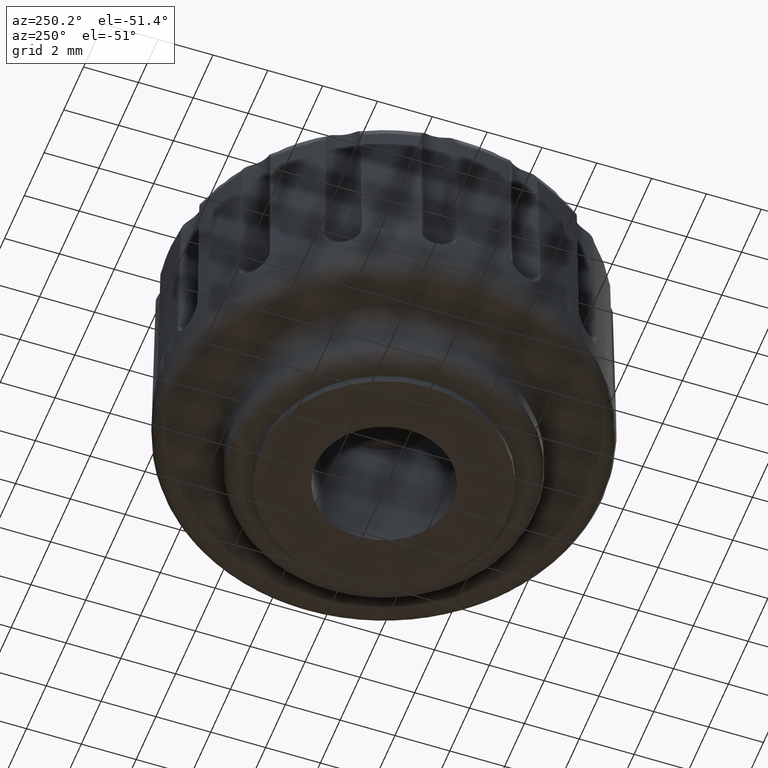
[diagram: clean part render]
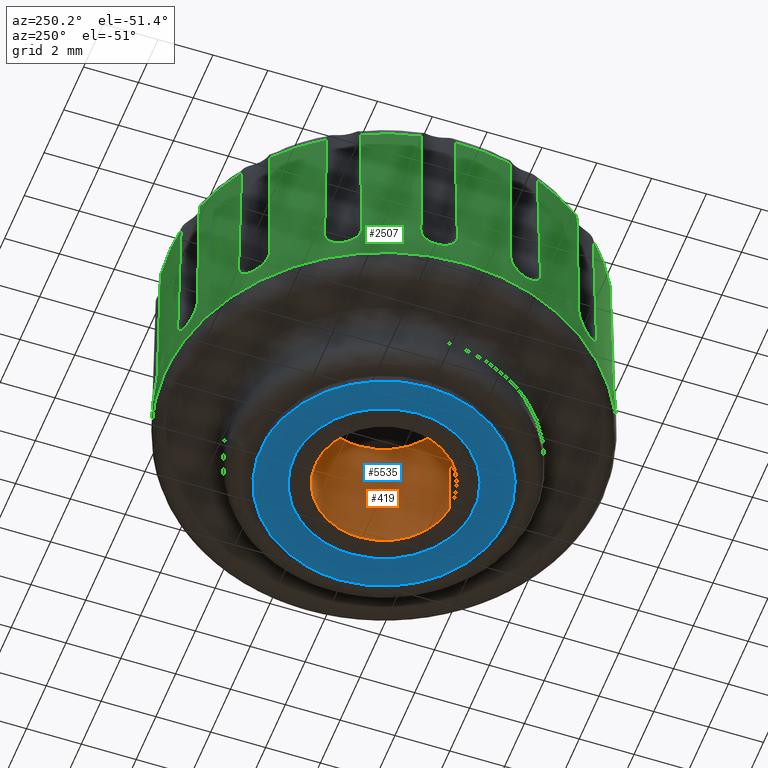
[diagram: same view with three faces highlighted in distinct colors, each labeled with its STEP entity id]
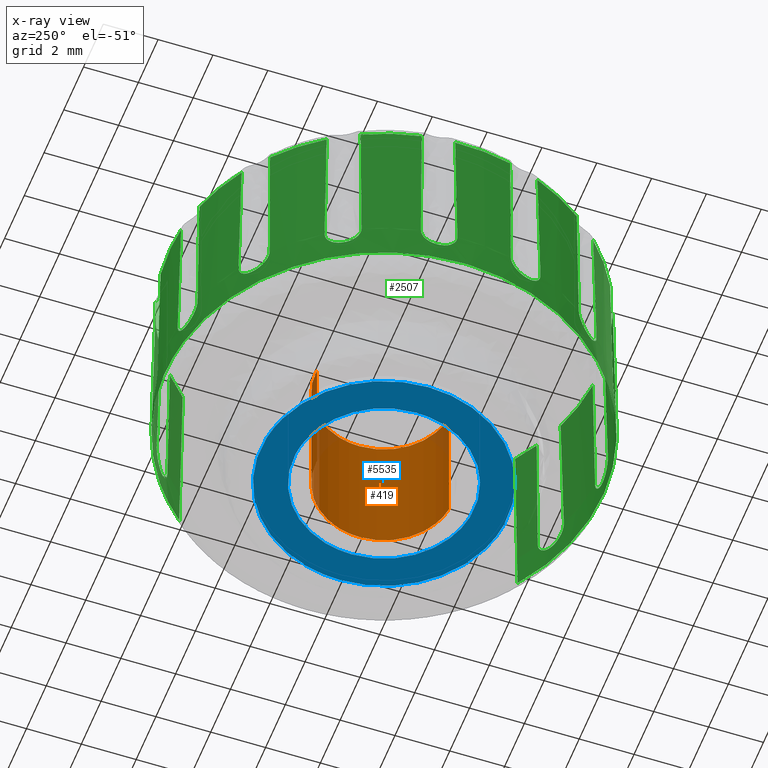
[diagram: x-ray of the same camera — body ghosted, the three highlighted faces saturated]
A machine part, auxiliary view with three faces highlighted in distinct colors.
The next image is the same camera in x-ray (body ghosted, the three faces saturated) — at least one of them is partly hidden behind the body in this view.
Their STEP definitions:

[orange] entity #419 — the highlighted face is a freeform B-spline surface patch.
#256=CARTESIAN_POINT('',(0.295089601772535,-2.482521814110650,-2.768443E-016));
#257=VERTEX_POINT('',#256);
#275=CARTESIAN_POINT('',(-0.152617348850250,2.495338996053875,1.387779E-017));
#276=VERTEX_POINT('',#275);
#290=CARTESIAN_POINT('',(-0.152617348850251,2.495338996053875,5.0));
#291=VERTEX_POINT('',#290);
#292=CARTESIAN_POINT('',(-0.152617348850251,2.495338996053875,5.0));
#293=CARTESIAN_POINT('',(-0.152617348850250,2.495338996053875,1.387779E-017));
#294=QUASI_UNIFORM_CURVE('',1,(#292,#293),.UNSPECIFIED.,.F.,.U.);
#295=EDGE_CURVE('',#291,#276,#294,.T.);
#312=CARTESIAN_POINT('',(0.295089601772535,-2.482521814110650,4.999999999999998));
#313=VERTEX_POINT('',#312);
#329=CARTESIAN_POINT('',(0.295089601772535,-2.482521814110650,4.999999999999998));
#330=CARTESIAN_POINT('',(0.295089601772535,-2.482521814110650,-2.768443E-016));
#331=QUASI_UNIFORM_CURVE('',1,(#329,#330),.UNSPECIFIED.,.F.,.U.);
#332=EDGE_CURVE('',#313,#257,#331,.T.);
#337=CARTESIAN_POINT('',(-0.152617348837146,2.495338996054676,5.125000000000001));
#338=CARTESIAN_POINT('',(2.342719647217522,2.647960344891818,5.125000000000001));
#339=CARTESIAN_POINT('',(2.495340996054664,0.152623348837152,5.125000000000001));
#340=CARTESIAN_POINT('',(2.639469491831317,-2.203856727098743,5.125000000000001));
#341=CARTESIAN_POINT('',(0.295089586641893,-2.482521815909157,5.125000000000002));
#342=CARTESIAN_POINT('',(-0.152617348837146,2.495338996054676,-0.128125000000001));
#343=CARTESIAN_POINT('',(2.342719647217522,2.647960344891818,-0.128125000000001));
#344=CARTESIAN_POINT('',(2.495340996054664,0.152623348837152,-0.128125000000001));
#345=CARTESIAN_POINT('',(2.639469491831317,-2.203856727098743,-0.128125000000001));
#346=CARTESIAN_POINT('',(0.295089586641893,-2.482521815909157,-0.128125000000001));
#354=(BOUNDED_SURFACE()B_SPLINE_SURFACE(2,1,((#337,#342),(#338,#343),(#339,#344),(#340,#345),(#341,#346)),.UNSPECIFIED.,.F.,.F.,.U.)B_SPLINE_SURFACE_WITH_KNOTS((3,2,3),(2,2),(0.0,4.142135623730949,8.118585822512660),(0.0,5.253125000000002),.UNSPECIFIED.)GEOMETRIC_REPRESENTATION_ITEM()RATIONAL_B_SPLINE_SURFACE(((1.0,1.0),(0.707106781186548,0.707106781186548),(1.0,1.0),(0.718822509939086,0.718822509939086),(0.977505800795127,0.977505800795127)))REPRESENTATION_ITEM('')SURFACE());
#355=CARTESIAN_POINT('',(2.500003999999997,0.000002000000009,0.0));
#356=VERTEX_POINT('',#355);
#357=CARTESIAN_POINT('',(2.500003999999997,0.000002000000009,0.0));
#358=CARTESIAN_POINT('',(2.500003999999997,-2.220434287621361,0.0));
#359=CARTESIAN_POINT('',(0.295089601772535,-2.482521814110651,-2.768443E-016));
#367=(BOUNDED_CURVE()B_SPLINE_CURVE(2,(#357,#358,#359),.UNSPECIFIED.,.F.,.U.)B_SPLINE_CURVE_WITH_KNOTS((3,3),(0.0,0.229562471455541),.UNSPECIFIED.)CURVE()GEOMETRIC_REPRESENTATION_ITEM()RATIONAL_B_SPLINE_CURVE((1.0,0.731050835266461,0.956026750149999))REPRESENTATION_ITEM(''));
#368=EDGE_CURVE('',#356,#257,#367,.T.);
#369=ORIENTED_EDGE('',*,*,#368,.T.);
#370=ORIENTED_EDGE('',*,*,#332,.F.);
#371=CARTESIAN_POINT('',(2.500003999999997,0.000002000000009,5.0));
#372=VERTEX_POINT('',#371);
#373=CARTESIAN_POINT('',(2.500003999999997,0.000002000000009,5.0));
#374=CARTESIAN_POINT('',(2.500003999999997,-2.220434287621361,4.999999999999998));
#375=CARTESIAN_POINT('',(0.295089601772535,-2.482521814110651,4.999999999999998));
#383=(BOUNDED_CURVE()B_SPLINE_CURVE(2,(#373,#374,#375),.UNSPECIFIED.,.F.,.U.)B_SPLINE_CURVE_WITH_KNOTS((3,3),(0.0,0.229562471455541),.UNSPECIFIED.)CURVE()GEOMETRIC_REPRESENTATION_ITEM()RATIONAL_B_SPLINE_CURVE((1.0,0.731050835266461,0.956026750149999))REPRESENTATION_ITEM(''));
#384=EDGE_CURVE('',#372,#313,#383,.T.);
#385=ORIENTED_EDGE('',*,*,#384,.F.);
#386=CARTESIAN_POINT('',(-0.152617348850251,2.495338996053876,5.0));
#387=CARTESIAN_POINT('',(-0.076377908259617,2.500002000000010,5.0));
#388=CARTESIAN_POINT('',(0.000003999999997,2.500002000000010,5.0));
#389=CARTESIAN_POINT('',(2.500003999999998,2.500002000000010,5.000000000000001));
#390=CARTESIAN_POINT('',(2.500003999999997,0.000002000000009,5.0));
#398=(BOUNDED_CURVE()B_SPLINE_CURVE(2,(#386,#387,#388,#389,#390),.UNSPECIFIED.,.F.,.U.)B_SPLINE_CURVE_WITH_KNOTS((3,2,3),(0.739332962240156,0.750000000000000,1.0),.UNSPECIFIED.)CURVE()GEOMETRIC_REPRESENTATION_ITEM()RATIONAL_B_SPLINE_CURVE((0.976072041669317,0.987502787901258,1.0,0.707106781186548,1.0))REPRESENTATION_ITEM(''));
#399=EDGE_CURVE('',#291,#372,#398,.T.);
#400=ORIENTED_EDGE('',*,*,#399,.F.);
#401=ORIENTED_EDGE('',*,*,#295,.T.);
#402=CARTESIAN_POINT('',(-0.152617348850250,2.495338996053875,1.387779E-017));
#403=CARTESIAN_POINT('',(-0.076377908259617,2.500002000000010,0.0));
#404=CARTESIAN_POINT('',(0.000003999999997,2.500002000000010,0.0));
#405=CARTESIAN_POINT('',(2.500003999999998,2.500002000000010,0.0));
#406=CARTESIAN_POINT('',(2.500003999999997,0.000002000000009,0.0));
#414=(BOUNDED_CURVE()B_SPLINE_CURVE(2,(#402,#403,#404,#405,#406),.UNSPECIFIED.,.F.,.U.)B_SPLINE_CURVE_WITH_KNOTS((3,2,3),(0.739332962240156,0.750000000000000,1.0),.UNSPECIFIED.)CURVE()GEOMETRIC_REPRESENTATION_ITEM()RATIONAL_B_SPLINE_CURVE((0.976072041669318,0.987502787901259,1.0,0.707106781186548,1.0))REPRESENTATION_ITEM(''));
#415=EDGE_CURVE('',#276,#356,#414,.T.);
#416=ORIENTED_EDGE('',*,*,#415,.T.);
#417=EDGE_LOOP('',(#369,#370,#385,#400,#401,#416));
#418=FACE_OUTER_BOUND('',#417,.T.);
#419=ADVANCED_FACE('',(#418),#354,.F.);

[blue] entity #5535 — the highlighted face is a freeform B-spline surface patch.
#538=CARTESIAN_POINT('',(0.389509322563938,-3.276932108792716,1.419714E-017));
#539=VERTEX_POINT('',#538);
#545=CARTESIAN_POINT('',(-3.299998000000001,0.0,0.0));
#546=VERTEX_POINT('',#545);
#547=CARTESIAN_POINT('',(0.389509322563938,-3.276932108792716,1.419714E-017));
#548=CARTESIAN_POINT('',(0.195438739075279,-3.299999999999999,0.0));
#549=CARTESIAN_POINT('',(0.000001999999999,-3.300000000000000,0.0));
#550=CARTESIAN_POINT('',(-3.299998000000002,-3.300000000000000,0.0));
#551=CARTESIAN_POINT('',(-3.299998000000001,0.0,0.0));
#559=(BOUNDED_CURVE()B_SPLINE_CURVE(2,(#547,#548,#549,#550,#551),.UNSPECIFIED.,.F.,.U.)B_SPLINE_CURVE_WITH_KNOTS((3,2,3),(0.229562764999688,0.250000000000000,0.500000000000000),.UNSPECIFIED.)CURVE()GEOMETRIC_REPRESENTATION_ITEM()RATIONAL_B_SPLINE_CURVE((0.956027325509337,0.976056289828447,1.0,0.707106781186548,1.0))REPRESENTATION_ITEM(''));
#560=EDGE_CURVE('',#539,#546,#559,.T.);
#562=CARTESIAN_POINT('',(-0.201458180479343,3.293844834791285,1.387779E-017));
#563=VERTEX_POINT('',#562);
#564=CARTESIAN_POINT('',(-3.299998000000001,0.0,0.0));
#565=CARTESIAN_POINT('',(-3.299998000000002,3.104330020761756,0.0));
#566=CARTESIAN_POINT('',(-0.201458180479343,3.293844834791285,1.387779E-017));
#574=(BOUNDED_CURVE()B_SPLINE_CURVE(2,(#564,#565,#566),.UNSPECIFIED.,.F.,.U.)B_SPLINE_CURVE_WITH_KNOTS((3,3),(0.500000000000000,0.739332962240468),.UNSPECIFIED.)CURVE()GEOMETRIC_REPRESENTATION_ITEM()RATIONAL_B_SPLINE_CURVE((1.0,0.719603993284923,0.976072041669987))REPRESENTATION_ITEM(''));
#575=EDGE_CURVE('',#546,#563,#574,.T.);
#653=CARTESIAN_POINT('',(3.300001999999998,0.0,0.0));
#654=VERTEX_POINT('',#653);
#655=CARTESIAN_POINT('',(-0.201458180479342,3.293844834791285,1.387779E-017));
#656=CARTESIAN_POINT('',(-0.100822118899698,3.300000000000000,0.0));
#657=CARTESIAN_POINT('',(0.000001999999999,3.300000000000000,0.0));
#658=CARTESIAN_POINT('',(3.300001999999998,3.300000000000000,0.0));
#659=CARTESIAN_POINT('',(3.300001999999998,0.0,0.0));
#667=(BOUNDED_CURVE()B_SPLINE_CURVE(2,(#655,#656,#657,#658,#659),.UNSPECIFIED.,.F.,.U.)B_SPLINE_CURVE_WITH_KNOTS((3,2,3),(0.739332962240469,0.750000000000000,1.0),.UNSPECIFIED.)CURVE()GEOMETRIC_REPRESENTATION_ITEM()RATIONAL_B_SPLINE_CURVE((0.976072041669988,0.987502787901625,1.0,0.707106781186548,1.0))REPRESENTATION_ITEM(''));
#668=EDGE_CURVE('',#563,#654,#667,.T.);
#670=CARTESIAN_POINT('',(3.300001999999998,0.0,0.0));
#671=CARTESIAN_POINT('',(3.300001999999998,-2.930981026354351,0.0));
#672=CARTESIAN_POINT('',(0.389509322563938,-3.276932108792716,1.419714E-017));
#680=(BOUNDED_CURVE()B_SPLINE_CURVE(2,(#670,#671,#672),.UNSPECIFIED.,.F.,.U.)B_SPLINE_CURVE_WITH_KNOTS((3,3),(0.0,0.229562764999688),.UNSPECIFIED.)CURVE()GEOMETRIC_REPRESENTATION_ITEM()RATIONAL_B_SPLINE_CURVE((1.0,0.731050491358101,0.956027325509337))REPRESENTATION_ITEM(''));
#681=EDGE_CURVE('',#654,#539,#680,.T.);
#891=CARTESIAN_POINT('',(-0.531149239530916,4.468545867375239,-0.000001784795915));
#892=VERTEX_POINT('',#891);
#893=CARTESIAN_POINT('',(4.500002409279020,0.0,-0.000001784795445));
#894=VERTEX_POINT('',#893);
#895=CARTESIAN_POINT('',(-0.531149239530916,4.468545867375239,-0.000001784795915));
#896=CARTESIAN_POINT('',(-0.266506103757996,4.500002409279020,-0.000001784795445));
#897=CARTESIAN_POINT('',(0.0,4.500002409279020,-0.000001784795445));
#898=CARTESIAN_POINT('',(4.500002409279020,4.500002409279020,-0.000001784795445));
#899=CARTESIAN_POINT('',(4.500002409279020,0.0,-0.000001784795445));
#907=(BOUNDED_CURVE()B_SPLINE_CURVE(2,(#895,#896,#897,#898,#899),.UNSPECIFIED.,.F.,.U.)B_SPLINE_CURVE_WITH_KNOTS((3,2,3),(0.229562666431259,0.250000000000000,0.500000000000000),.UNSPECIFIED.)CURVE()GEOMETRIC_REPRESENTATION_ITEM()RATIONAL_B_SPLINE_CURVE((0.956027132310733,0.976056174348348,1.0,0.707106781186548,1.0))REPRESENTATION_ITEM(''));
#908=EDGE_CURVE('',#892,#894,#907,.T.);
#949=CARTESIAN_POINT('',(0.274712648487112,-4.491609360156215,-0.000001784795899));
#950=VERTEX_POINT('',#949);
#956=CARTESIAN_POINT('',(4.500002409279020,0.0,-0.000001784795445));
#957=CARTESIAN_POINT('',(4.500002409279019,-4.233185163454786,-0.000001784795445));
#958=CARTESIAN_POINT('',(0.274712648487112,-4.491609360156216,-0.000001784795899));
#966=(BOUNDED_CURVE()B_SPLINE_CURVE(2,(#956,#957,#958),.UNSPECIFIED.,.F.,.U.)B_SPLINE_CURVE_WITH_KNOTS((3,3),(0.500000000000000,0.739333189910759),.UNSPECIFIED.)CURVE()GEOMETRIC_REPRESENTATION_ITEM()RATIONAL_B_SPLINE_CURVE((1.0,0.719603726552585,0.976072529611245))REPRESENTATION_ITEM(''));
#967=EDGE_CURVE('',#894,#950,#966,.T.);
#990=CARTESIAN_POINT('',(-4.500002409279020,0.0,-0.000001784795445));
#991=VERTEX_POINT('',#990);
#992=CARTESIAN_POINT('',(-4.500002409279020,0.0,-0.000001784795445));
#993=CARTESIAN_POINT('',(-4.500002409279019,3.996792101055142,-0.000001784795445));
#994=CARTESIAN_POINT('',(-0.531149239530916,4.468545867375239,-0.000001784795915));
#1002=(BOUNDED_CURVE()B_SPLINE_CURVE(2,(#992,#993,#994),.UNSPECIFIED.,.F.,.U.)B_SPLINE_CURVE_WITH_KNOTS((3,3),(0.0,0.229562666431259),.UNSPECIFIED.)CURVE()GEOMETRIC_REPRESENTATION_ITEM()RATIONAL_B_SPLINE_CURVE((1.0,0.731050606838199,0.956027132310733))REPRESENTATION_ITEM(''));
#1003=EDGE_CURVE('',#991,#892,#1002,.T.);
#1005=CARTESIAN_POINT('',(0.274712648487112,-4.491609360156216,-0.000001784795899));
#1006=CARTESIAN_POINT('',(0.137484536894058,-4.500002409279020,-0.000001784795445));
#1007=CARTESIAN_POINT('',(0.0,-4.500002409279020,-0.000001784795445));
#1008=CARTESIAN_POINT('',(-4.500002409279020,-4.500002409279020,-0.000001784795445));
#1009=CARTESIAN_POINT('',(-4.500002409279020,0.0,-0.000001784795445));
#1017=(BOUNDED_CURVE()B_SPLINE_CURVE(2,(#1005,#1006,#1007,#1008,#1009),.UNSPECIFIED.,.F.,.U.)B_SPLINE_CURVE_WITH_KNOTS((3,2,3),(0.739333189910759,0.750000000000000,1.0),.UNSPECIFIED.)CURVE()GEOMETRIC_REPRESENTATION_ITEM()RATIONAL_B_SPLINE_CURVE((0.976072529611245,0.987503054633962,1.0,0.707106781186548,1.0))REPRESENTATION_ITEM(''));
#1018=EDGE_CURVE('',#950,#991,#1017,.T.);
#5518=CARTESIAN_POINT('',(-4.949552632522238,-4.949443359920227,-0.000001784795445));
#5519=CARTESIAN_POINT('',(4.949552873921179,-4.949443359920227,-0.000001784795445));
#5520=CARTESIAN_POINT('',(-4.949552632522238,4.949470798933141,-0.000001784795445));
#5521=CARTESIAN_POINT('',(4.949552873921179,4.949470798933141,-0.000001784795445));
#5522=B_SPLINE_SURFACE_WITH_KNOTS('',1,1,((#5518,#5520),(#5519,#5521)),.UNSPECIFIED.,.F.,.F.,.U.,(2,2),(2,2),(0.0,9.899105506443416),(0.0,9.898914158853369),.UNSPECIFIED.);
#5523=ORIENTED_EDGE('',*,*,#1003,.T.);
#5524=ORIENTED_EDGE('',*,*,#908,.T.);
#5525=ORIENTED_EDGE('',*,*,#967,.T.);
#5526=ORIENTED_EDGE('',*,*,#1018,.T.);
#5527=EDGE_LOOP('',(#5523,#5524,#5525,#5526));
#5528=FACE_OUTER_BOUND('',#5527,.T.);
#5529=ORIENTED_EDGE('',*,*,#575,.F.);
#5530=ORIENTED_EDGE('',*,*,#560,.F.);
#5531=ORIENTED_EDGE('',*,*,#681,.F.);
#5532=ORIENTED_EDGE('',*,*,#668,.F.);
#5533=EDGE_LOOP('',(#5529,#5530,#5531,#5532));
#5534=FACE_BOUND('',#5533,.T.);
#5535=ADVANCED_FACE('',(#5528,#5534),#5522,.F.);

[green] entity #2507 — the highlighted face is a freeform B-spline surface patch.
#1483=CARTESIAN_POINT('',(4.523723624608315,-6.410093571802729,9.579664984328499));
#1484=CARTESIAN_POINT('',(-1.184411502606155,-10.438431916351211,9.579664984328497));
#1485=CARTESIAN_POINT('',(-5.844892288569011,-5.233603841153109,9.579664984328497));
#1486=CARTESIAN_POINT('',(-11.078496129722119,0.611288447415902,9.579664984328497));
#1487=CARTESIAN_POINT('',(-5.233603841153109,5.844892288569011,9.579664984328497));
#1488=CARTESIAN_POINT('',(0.611288447415902,11.078496129722119,9.579664984328497));
#1489=CARTESIAN_POINT('',(5.844892288569011,5.233603841153109,9.579664984328497));
#1490=CARTESIAN_POINT('',(4.606379219387531,-6.527216132934801,2.542621517320861));
#1491=CARTESIAN_POINT('',(-1.206052576494645,-10.629158598661093,2.542621517320861));
#1492=CARTESIAN_POINT('',(-5.951687727155062,-5.329230071715935,2.542621517320861));
#1493=CARTESIAN_POINT('',(-11.280917798870998,0.622457655439127,2.542621517320862));
#1494=CARTESIAN_POINT('',(-5.329230071715935,5.951687727155062,2.542621517320861));
#1495=CARTESIAN_POINT('',(0.622457655439127,11.280917798870998,2.542621517320862));
#1496=CARTESIAN_POINT('',(5.951687727155062,5.329230071715935,2.542621517320861));
#1504=(BOUNDED_SURFACE()B_SPLINE_SURFACE(2,1,((#1483,#1490),(#1484,#1491),(#1485,#1492),(#1486,#1493),(#1487,#1494),(#1488,#1495),(#1489,#1496)),.UNSPECIFIED.,.F.,.F.,.U.)B_SPLINE_SURFACE_WITH_KNOTS((3,2,2,3),(2,2),(0.0,12.177599675421080,25.414121061748350,38.650642448075622),(0.0,7.038503420346494),.UNSPECIFIED.)GEOMETRIC_REPRESENTATION_ITEM()RATIONAL_B_SPLINE_SURFACE(((0.956886118190660,0.956886118190660),(0.730538238691624,0.730538238691624),(1.0,1.0),(0.707106781186548,0.707106781186548),(1.0,1.0),(0.707106781186548,0.707106781186548),(1.0,1.0)))REPRESENTATION_ITEM('')SURFACE());
#1505=CARTESIAN_POINT('',(4.604361595388040,-6.524360626274461,2.714257200678919));
#1506=VERTEX_POINT('',#1505);
#1507=CARTESIAN_POINT('',(-7.979777103845056,-0.300973106497311,2.714256723902901));
#1508=VERTEX_POINT('',#1507);
#1509=CARTESIAN_POINT('',(4.604361595388041,-6.524360626274461,2.714257200678919));
#1510=CARTESIAN_POINT('',(2.534002842148658,-7.985450985185421,2.714256727239941));
#1511=CARTESIAN_POINT('',(0.0,-7.985450985185420,2.714256727239940));
#1512=CARTESIAN_POINT('',(-7.689941792576957,-7.985450985185419,2.714256727239941));
#1513=CARTESIAN_POINT('',(-7.979777103845056,-0.300973106497311,2.714256723902901));
#1521=(BOUNDED_CURVE()B_SPLINE_CURVE(2,(#1509,#1510,#1511,#1512,#1513),.UNSPECIFIED.,.F.,.U.)B_SPLINE_CURVE_WITH_KNOTS((3,2,3),(0.650841347869913,0.750000000000000,0.993386528575626),.UNSPECIFIED.)CURVE()GEOMETRIC_REPRESENTATION_ITEM()RATIONAL_B_SPLINE_CURVE((0.859812169641832,0.883828412817661,1.0,0.714854944918611,0.984913610611341))REPRESENTATION_ITEM(''));
#1522=EDGE_CURVE('',#1506,#1508,#1521,.T.);
#1523=ORIENTED_EDGE('',*,*,#1522,.F.);
#1524=CARTESIAN_POINT('',(4.525690308210250,-6.412880629569061,9.412216472564930));
#1525=VERTEX_POINT('',#1524);
#1526=CARTESIAN_POINT('',(4.525690308210250,-6.412880629569061,9.412216472564930));
#1527=CARTESIAN_POINT('',(4.604361595388040,-6.524360626274461,2.714257200678919));
#1528=QUASI_UNIFORM_CURVE('',1,(#1526,#1527),.UNSPECIFIED.,.F.,.U.);
#1529=EDGE_CURVE('',#1525,#1506,#1528,.T.);
#1530=ORIENTED_EDGE('',*,*,#1529,.F.);
#1531=CARTESIAN_POINT('',(3.724309383389160,-6.909155556422830,9.412215999999900));
#1532=VERTEX_POINT('',#1531);
#1533=CARTESIAN_POINT('',(4.525690308210250,-6.412880629569061,9.412216472564930));
#1534=CARTESIAN_POINT('',(4.139926372217987,-6.685121484711675,9.412215999999900));
#1535=CARTESIAN_POINT('',(3.724309383389160,-6.909155556422829,9.412215999999900));
#1543=(BOUNDED_CURVE()B_SPLINE_CURVE(2,(#1533,#1534,#1535),.UNSPECIFIED.,.F.,.U.)B_SPLINE_CURVE_WITH_KNOTS((3,3),(0.551312311213483,1.0),.UNSPECIFIED.)CURVE()GEOMETRIC_REPRESENTATION_ITEM()RATIONAL_B_SPLINE_CURVE((0.995569608928650,0.995981958881348,1.0))REPRESENTATION_ITEM(''));
#1544=EDGE_CURVE('',#1525,#1532,#1543,.T.);
#1545=ORIENTED_EDGE('',*,*,#1544,.T.);
#1546=CARTESIAN_POINT('',(3.816159291570730,-6.982428766642530,4.099998000000050));
#1547=VERTEX_POINT('',#1546);
#1548=CARTESIAN_POINT('',(3.816159291570732,-6.982428766642525,4.099998000000049));
#1549=CARTESIAN_POINT('',(3.788607547319943,-6.956378606480446,5.870766696366895));
#1550=CARTESIAN_POINT('',(3.758241348740677,-6.931842592388329,7.641511528857084));
#1551=CARTESIAN_POINT('',(3.724309383389181,-6.909155556422826,9.412215999999901));
#1552=QUASI_UNIFORM_CURVE('',3,(#1548,#1549,#1550,#1551),.UNSPECIFIED.,.F.,.U.);
#1553=EDGE_CURVE('',#1547,#1532,#1552,.T.);
#1554=ORIENTED_EDGE('',*,*,#1553,.F.);
#1555=CARTESIAN_POINT('',(2.635446826464195,-7.508115825209311,4.099997999999999));
#1556=VERTEX_POINT('',#1555);
#1557=CARTESIAN_POINT('',(2.635446826464195,-7.508115825209311,4.099997999999999));
#1558=CARTESIAN_POINT('',(2.635469204785372,-7.509034536623016,4.057080522890732));
#1559=CARTESIAN_POINT('',(2.639371661005295,-7.508585397441424,4.014590445424951));
#1560=CARTESIAN_POINT('',(2.654873826394615,-7.504936122108290,3.930458736214820));
#1561=CARTESIAN_POINT('',(2.666644107312114,-7.501679841034682,3.888587035964628));
#1562=CARTESIAN_POINT('',(2.697055982479386,-7.492517876056766,3.809228933658157));
#1563=CARTESIAN_POINT('',(2.715729833691535,-7.486611176489306,3.771302731087238));
#1564=CARTESIAN_POINT('',(2.749045614769200,-7.475590768231116,3.717113543658333));
#1565=CARTESIAN_POINT('',(2.761070095152176,-7.471543560320807,3.699487256844191));
#1566=CARTESIAN_POINT('',(2.786374755852466,-7.462873231734648,3.665932262034255));
#1567=CARTESIAN_POINT('',(2.799713510803559,-7.458231094141102,3.649899435294610));
#1568=CARTESIAN_POINT('',(2.841748066763659,-7.443361747456543,3.604003944824569));
#1569=CARTESIAN_POINT('',(2.872600347071527,-7.432142351161830,3.576206609757150));
#1570=CARTESIAN_POINT('',(2.939230350303137,-7.407116713903410,3.527290884882226));
#1571=CARTESIAN_POINT('',(2.974172250115709,-7.393625789797515,3.506736951675709));
#1572=CARTESIAN_POINT('',(3.028915085039258,-7.371843638561299,3.481607805134035));
#1573=CARTESIAN_POINT('',(3.047554066064484,-7.364323871120135,3.474188698001266));
#1574=CARTESIAN_POINT('',(3.085633503096338,-7.348734213679758,3.461325843405057));
#1575=CARTESIAN_POINT('',(3.105028406992931,-7.340681347689722,3.455912879122804));
#1576=CARTESIAN_POINT('',(3.163084432209980,-7.316229438180460,3.443011547246517));
#1577=CARTESIAN_POINT('',(3.202042254351317,-7.299364905331633,3.438674175342447));
#1578=CARTESIAN_POINT('',(3.260849373293838,-7.273191109709298,3.438593961547177));
#1579=CARTESIAN_POINT('',(3.280626945854932,-7.264267720371978,3.439663497825632));
#1580=CARTESIAN_POINT('',(3.319586081178982,-7.246450869363970,3.443964546882716));
#1581=CARTESIAN_POINT('',(3.338791633435646,-7.237548403816564,3.447180951200019));
#1582=CARTESIAN_POINT('',(3.395611905354270,-7.210868487681622,3.459946481469523));
#1583=CARTESIAN_POINT('',(3.432475790924920,-7.193096794549835,3.472599014986125));
#1584=CARTESIAN_POINT('',(3.503904984023678,-7.157807397484612,3.506398496996818));
#1585=CARTESIAN_POINT('',(3.537339067406232,-7.140851212765450,3.526999270254290));
#1586=CARTESIAN_POINT('',(3.584277691715215,-7.116515344856466,3.563206672758565));
#1587=CARTESIAN_POINT('',(3.599384425981402,-7.108587957942487,3.576166963906935));
#1588=CARTESIAN_POINT('',(3.628506407134577,-7.093132361500400,3.603909145982811));
#1589=CARTESIAN_POINT('',(3.642499340500389,-7.085614884517687,3.618689995175949));
#1590=CARTESIAN_POINT('',(3.681943922812655,-7.064186969989857,3.664789073698619));
#1591=CARTESIAN_POINT('',(3.705216834929290,-7.051215666239996,3.698146026046815));
#1592=CARTESIAN_POINT('',(3.735693772454079,-7.033843284764969,3.752090017717624));
#1593=CARTESIAN_POINT('',(3.745153195034409,-7.028375804234906,3.770834476925920));
#1594=CARTESIAN_POINT('',(3.762271829458302,-7.018343300427724,3.809074247952696));
#1595=CARTESIAN_POINT('',(3.769937219581503,-7.013775858568938,3.828549823490125));
#1596=CARTESIAN_POINT('',(3.790340611160429,-7.001406711968974,3.888014083658838));
#1597=CARTESIAN_POINT('',(3.800511327996966,-6.994926759610324,3.929030414556345));
#1598=CARTESIAN_POINT('',(3.813835865622641,-6.985701203603177,4.013894598083268));
#1599=CARTESIAN_POINT('',(3.816830332266229,-6.983063235278304,4.056869773832951));
#1600=CARTESIAN_POINT('',(3.816159291570730,-6.982428766642530,4.099998000000050));
#1601=B_SPLINE_CURVE_WITH_KNOTS('',3,(#1557,#1558,#1559,#1560,#1561,#1562,#1563,#1564,#1565,#1566,#1567,#1568,#1569,#1570,#1571,#1572,#1573,#1574,#1575,#1576,#1577,#1578,#1579,#1580,#1581,#1582,#1583,#1584,#1585,#1586,#1587,#1588,#1589,#1590,#1591,#1592,#1593,#1594,#1595,#1596,#1597,#1598,#1599,#1600),.UNSPECIFIED.,.F.,.U.,(4,2,2,2,2,2,2,2,2,2,2,2,2,2,2,2,2,2,2,2,2,4),(0.0,0.062500000000002,0.125000000000004,0.187500000000005,0.218750000000006,0.250000000000007,0.312500000000008,0.375000000000008,0.406250000000009,0.437500000000009,0.500000000000008,0.531250000000008,0.562500000000007,0.625000000000007,0.687500000000006,0.718750000000006,0.750000000000005,0.812500000000004,0.843750000000003,0.875000000000002,0.937500000000001,1.0),.UNSPECIFIED.);
#1602=EDGE_CURVE('',#1556,#1547,#1601,.T.);
#1603=ORIENTED_EDGE('',*,*,#1602,.F.);
#1604=CARTESIAN_POINT('',(2.642453804198855,-7.390828693639440,9.412215999999900));
#1605=VERTEX_POINT('',#1604);
#1606=CARTESIAN_POINT('',(2.642453804198854,-7.390828693639435,9.412215999999900));
#1607=CARTESIAN_POINT('',(2.636608641624031,-7.431225644145270,7.641511708373158));
#1608=CARTESIAN_POINT('',(2.634523500140108,-7.470209932299387,5.870766568932623));
#1609=CARTESIAN_POINT('',(2.635446826464193,-7.508115825209318,4.099997999999999));
#1610=QUASI_UNIFORM_CURVE('',3,(#1606,#1607,#1608,#1609),.UNSPECIFIED.,.F.,.U.);
#1611=EDGE_CURVE('',#1605,#1556,#1610,.T.);
#1612=ORIENTED_EDGE('',*,*,#1611,.F.);
#1613=CARTESIAN_POINT('',(0.592119182542941,-7.826640771091620,9.412215999999900));
#1614=VERTEX_POINT('',#1613);
#1615=CARTESIAN_POINT('',(2.642453804198855,-7.390828693639435,9.412215999999900));
#1616=CARTESIAN_POINT('',(1.646646190559938,-7.746861247766269,9.412215999999900));
#1617=CARTESIAN_POINT('',(0.592119182542945,-7.826640771091624,9.412215999999900));
#1625=(BOUNDED_CURVE()B_SPLINE_CURVE(2,(#1615,#1616,#1617),.UNSPECIFIED.,.F.,.U.)CURVE()GEOMETRIC_REPRESENTATION_ITEM()QUASI_UNIFORM_CURVE()RATIONAL_B_SPLINE_CURVE((1.0,0.991044904464576,1.0))REPRESENTATION_ITEM(''));
#1626=EDGE_CURVE('',#1605,#1614,#1625,.T.);
#1627=ORIENTED_EDGE('',*,*,#1626,.T.);
#1628=CARTESIAN_POINT('',(0.646225349394961,-7.930937902775310,4.099998000000050));
#1629=VERTEX_POINT('',#1628);
#1630=CARTESIAN_POINT('',(0.646225349394960,-7.930937902775312,4.099998000000050));
#1631=CARTESIAN_POINT('',(0.631651133280432,-7.895933593320933,5.870766696366896));
#1632=CARTESIAN_POINT('',(0.613889926508758,-7.861167783425320,7.641511528857084));
#1633=CARTESIAN_POINT('',(0.592119182542960,-7.826640771091627,9.412215999999901));
#1634=QUASI_UNIFORM_CURVE('',3,(#1630,#1631,#1632,#1633),.UNSPECIFIED.,.F.,.U.);
#1635=EDGE_CURVE('',#1629,#1614,#1634,.T.);
#1636=ORIENTED_EDGE('',*,*,#1635,.F.);
#1637=CARTESIAN_POINT('',(-0.646225349394957,-7.930937902775310,4.099997999999999));
#1638=VERTEX_POINT('',#1637);
#1639=CARTESIAN_POINT('',(-0.646225349394957,-7.930937902775312,4.099997999999999));
#1640=CARTESIAN_POINT('',(-0.646577112465417,-7.931782766284694,4.057258752220632));
#1641=CARTESIAN_POINT('',(-0.642739252544174,-7.932986260265956,4.013830173335521));
#1642=CARTESIAN_POINT('',(-0.626994065577853,-7.935965240358129,3.929706931893015));
#1643=CARTESIAN_POINT('',(-0.615171549448541,-7.937739317658801,3.888746954918686));
#1644=CARTESIAN_POINT('',(-0.591438892580178,-7.940751873135525,3.828976721577666));
#1645=CARTESIAN_POINT('',(-0.582462024901471,-7.941820902361509,3.809229732252061));
#1646=CARTESIAN_POINT('',(-0.562773107421168,-7.944020669442407,3.771021342574140));
#1647=CARTESIAN_POINT('',(-0.552061197615220,-7.945152307239727,3.752524043498989));
#1648=CARTESIAN_POINT('',(-0.517375413247231,-7.948608249853852,3.698814110474512));
#1649=CARTESIAN_POINT('',(-0.490877000733756,-7.950994489082168,3.665365709663033));
#1650=CARTESIAN_POINT('',(-0.430807255109918,-7.955739562925083,3.603398441528025));
#1651=CARTESIAN_POINT('',(-0.398035148767056,-7.958031236526341,3.575745203268422));
#1652=CARTESIAN_POINT('',(-0.345369427297273,-7.961171156368147,3.539518494211466));
#1653=CARTESIAN_POINT('',(-0.327200532372004,-7.962170147825733,3.528299297394104));
#1654=CARTESIAN_POINT('',(-0.289604819662040,-7.964047875880044,3.507614453793280));
#1655=CARTESIAN_POINT('',(-0.270072429061630,-7.964930201838007,3.498111921675041));
#1656=CARTESIAN_POINT('',(-0.210754935364614,-7.967308513370727,3.472871300933832));
#1657=CARTESIAN_POINT('',(-0.170020633242066,-7.968552278047998,3.460187552194810));
#1658=CARTESIAN_POINT('',(-0.086194652896446,-7.970249502875897,3.443021856182413));
#1659=CARTESIAN_POINT('',(-0.042754280944765,-7.970695060603291,3.438619523772378));
#1660=CARTESIAN_POINT('',(0.042774585922491,-7.970694923952448,3.438620884061742));
#1661=CARTESIAN_POINT('',(0.085273448836594,-7.970264040788445,3.442876145351073));
#1662=CARTESIAN_POINT('',(0.148614700295134,-7.968987696866780,3.455783087030186));
#1663=CARTESIAN_POINT('',(0.169621672430527,-7.968456413009840,3.461188701880428));
#1664=CARTESIAN_POINT('',(0.210551556600728,-7.967220034541435,3.473944646913530));
#1665=CARTESIAN_POINT('',(0.250639735207186,-7.965805497156276,3.488688905666955));
#1666=CARTESIAN_POINT('',(0.289073061817338,-7.964072680881470,3.507345315371598));
#1667=CARTESIAN_POINT('',(0.326668695276946,-7.962198415434701,3.527983908633327));
#1668=CARTESIAN_POINT('',(0.345143782966384,-7.961184396774494,3.539366508221347));
#1669=CARTESIAN_POINT('',(0.398289738952650,-7.958016481660630,3.575913891863523));
#1670=CARTESIAN_POINT('',(0.430846130608862,-7.955734949228320,3.603470592150571));
#1671=CARTESIAN_POINT('',(0.490367621583861,-7.951036257002897,3.664808445205767));
#1672=CARTESIAN_POINT('',(0.517465156835613,-7.948600271663420,3.698924487806292));
#1673=CARTESIAN_POINT('',(0.563792354952000,-7.943982496220690,3.770718149275800));
#1674=CARTESIAN_POINT('',(0.583337038580711,-7.941778832536826,3.808631787736652));
#1675=CARTESIAN_POINT('',(0.607169978590799,-7.938755738944557,3.868565788153248));
#1676=CARTESIAN_POINT('',(0.614190290869755,-7.937794513324844,3.889093265841640));
#1677=CARTESIAN_POINT('',(0.626084135472922,-7.936023212461368,3.930300742775998));
#1678=CARTESIAN_POINT('',(0.631005188584349,-7.935207389732886,3.951087379546373));
#1679=CARTESIAN_POINT('',(0.642749471895067,-7.932982202211950,4.013986090478890));
#1680=CARTESIAN_POINT('',(0.646580593810157,-7.931791127768123,4.056835768498423));
#1681=CARTESIAN_POINT('',(0.646225349394961,-7.930937902775310,4.099998000000050));
#1682=B_SPLINE_CURVE_WITH_KNOTS('',3,(#1639,#1640,#1641,#1642,#1643,#1644,#1645,#1646,#1647,#1648,#1649,#1650,#1651,#1652,#1653,#1654,#1655,#1656,#1657,#1658,#1659,#1660,#1661,#1662,#1663,#1664,#1665,#1666,#1667,#1668,#1669,#1670,#1671,#1672,#1673,#1674,#1675,#1676,#1677,#1678,#1679,#1680,#1681),.UNSPECIFIED.,.F.,.U.,(4,2,2,2,2,2,2,2,2,2,2,2,2,1,2,2,2,2,2,2,2,4),(0.0,0.062500000000001,0.125000000000001,0.156250000000001,0.187500000000001,0.250000000000001,0.312500000000000,0.343750000000000,0.375000000000000,0.437500000000000,0.500000000000000,0.562500000000000,0.593750000000000,0.625000000000000,0.656250000000000,0.687500000000000,0.749999999999999,0.812499999999999,0.874999999999998,0.906249999999998,0.937499999999999,1.0),.UNSPECIFIED.);
#1683=EDGE_CURVE('',#1638,#1629,#1682,.T.);
#1684=ORIENTED_EDGE('',*,*,#1683,.F.);
#1685=CARTESIAN_POINT('',(-0.592119182542941,-7.826640771091631,9.412215999999900));
#1686=VERTEX_POINT('',#1685);
#1687=CARTESIAN_POINT('',(-0.592119182542938,-7.826640771091624,9.412215999999900));
#1688=CARTESIAN_POINT('',(-0.613889924301593,-7.861167779924927,7.641511708373158));
#1689=CARTESIAN_POINT('',(-0.631651134329278,-7.895933595840042,5.870766568932623));
#1690=CARTESIAN_POINT('',(-0.646225349394965,-7.930937902775317,4.099997999999999));
#1691=QUASI_UNIFORM_CURVE('',3,(#1687,#1688,#1689,#1690),.UNSPECIFIED.,.F.,.U.);
#1692=EDGE_CURVE('',#1686,#1638,#1691,.T.);
#1693=ORIENTED_EDGE('',*,*,#1692,.F.);
#1694=CARTESIAN_POINT('',(-2.642453804198845,-7.390828693639440,9.412215999999900));
#1695=VERTEX_POINT('',#1694);
#1696=CARTESIAN_POINT('',(-0.592119182542935,-7.826640771091624,9.412215999999900));
#1697=CARTESIAN_POINT('',(-1.646646190559929,-7.746861247766270,9.412215999999900));
#1698=CARTESIAN_POINT('',(-2.642453804198840,-7.390828693639440,9.412215999999900));
#1706=(BOUNDED_CURVE()B_SPLINE_CURVE(2,(#1696,#1697,#1698),.UNSPECIFIED.,.F.,.U.)CURVE()GEOMETRIC_REPRESENTATION_ITEM()QUASI_UNIFORM_CURVE()RATIONAL_B_SPLINE_CURVE((1.0,0.991044904464576,1.0))REPRESENTATION_ITEM(''));
#1707=EDGE_CURVE('',#1686,#1695,#1706,.T.);
#1708=ORIENTED_EDGE('',*,*,#1707,.T.);
#1709=CARTESIAN_POINT('',(-2.635446826464190,-7.508115825209311,4.099998000000050));
#1710=VERTEX_POINT('',#1709);
#1711=CARTESIAN_POINT('',(-2.635446826464188,-7.508115825209314,4.099998000000050));
#1712=CARTESIAN_POINT('',(-2.634523500073656,-7.470209929571467,5.870766696366896));
#1713=CARTESIAN_POINT('',(-2.636608641031416,-7.431225648240778,7.641511528857082));
#1714=CARTESIAN_POINT('',(-2.642453804198827,-7.390828693639453,9.412215999999900));
#1715=QUASI_UNIFORM_CURVE('',3,(#1711,#1712,#1713,#1714),.UNSPECIFIED.,.F.,.U.);
#1716=EDGE_CURVE('',#1710,#1695,#1715,.T.);
#1717=ORIENTED_EDGE('',*,*,#1716,.F.);
#1718=CARTESIAN_POINT('',(-3.816159291570725,-6.982428766642530,4.099997999999999));
#1719=VERTEX_POINT('',#1718);
#1720=CARTESIAN_POINT('',(-3.816159291570725,-6.982428766642530,4.099997999999999));
#1721=CARTESIAN_POINT('',(-3.816829048500599,-6.983062021477384,4.056952282348239));
#1722=CARTESIAN_POINT('',(-3.813863150262335,-6.985673719511525,4.014429876504431));
#1723=CARTESIAN_POINT('',(-3.800783537763700,-6.994746687971505,3.930410771118553));
#1724=CARTESIAN_POINT('',(-3.790489214752715,-7.001314435043680,3.888525837021330));
#1725=CARTESIAN_POINT('',(-3.763264552523371,-7.017823195867915,3.809024938463764));
#1726=CARTESIAN_POINT('',(-3.746362541418588,-7.027756448286715,3.771118320440029));
#1727=CARTESIAN_POINT('',(-3.715943588497531,-7.045103848970043,3.717062880936666));
#1728=CARTESIAN_POINT('',(-3.704885109026741,-7.051334515811676,3.699426363346341));
#1729=CARTESIAN_POINT('',(-3.681436328690922,-7.064378104057386,3.665780770889057));
#1730=CARTESIAN_POINT('',(-3.669033291584191,-7.071199231756590,3.649725121351315));
#1731=CARTESIAN_POINT('',(-3.629811713336526,-7.092509922112035,3.603813245505755));
#1732=CARTESIAN_POINT('',(-3.601001353593606,-7.107838791176546,3.576189295005874));
#1733=CARTESIAN_POINT('',(-3.537701203593086,-7.140669304124014,3.527198100701714));
#1734=CARTESIAN_POINT('',(-3.504159783306625,-7.157675237473550,3.506587847820596));
#1735=CARTESIAN_POINT('',(-3.451353342615658,-7.183773429235890,3.481498375191109));
#1736=CARTESIAN_POINT('',(-3.433316273197168,-7.192580735890984,3.474100836404313));
#1737=CARTESIAN_POINT('',(-3.396343133958379,-7.210401722582906,3.461285360162815));
#1738=CARTESIAN_POINT('',(-3.377327435961532,-7.219451708526154,3.455859927879845));
#1739=CARTESIAN_POINT('',(-3.320157451907408,-7.246302452304125,3.442952737807429));
#1740=CARTESIAN_POINT('',(-3.281536352338144,-7.263974299142796,3.438651926711939));
#1741=CARTESIAN_POINT('',(-3.203270057743574,-7.298827637266684,3.438588827209131));
#1742=CARTESIAN_POINT('',(-3.163414778140087,-7.316086903387975,3.442970567958080));
#1743=CARTESIAN_POINT('',(-3.086206670345515,-7.348612008219333,3.460063413615090));
#1744=CARTESIAN_POINT('',(-3.048418172009493,-7.364077017187611,3.472725026461008));
#1745=CARTESIAN_POINT('',(-2.974558995351097,-7.393478115544172,3.506491041276576));
#1746=CARTESIAN_POINT('',(-2.939351325713106,-7.407067857883184,3.527249797062377));
#1747=CARTESIAN_POINT('',(-2.889895007381439,-7.425648303845597,3.563486553528795));
#1748=CARTESIAN_POINT('',(-2.873924792662043,-7.431558112148250,3.576443516667401));
#1749=CARTESIAN_POINT('',(-2.843039706233365,-7.442824316496198,3.604141212624224));
#1750=CARTESIAN_POINT('',(-2.828067057211881,-7.448200502494195,3.618956567502536));
#1751=CARTESIAN_POINT('',(-2.785673269273786,-7.463199244651928,3.665199640854978));
#1752=CARTESIAN_POINT('',(-2.760484001192742,-7.471803781260702,3.698600685913929));
#1753=CARTESIAN_POINT('',(-2.716198376361054,-7.486459453239683,3.770450239151324));
#1754=CARTESIAN_POINT('',(-2.697070274415308,-7.492513527016705,3.809193293408879));
#1755=CARTESIAN_POINT('',(-2.666636727849441,-7.501682107594221,3.888604638873706));
#1756=CARTESIAN_POINT('',(-2.655068814783209,-7.504885652200811,3.929606440006404));
#1757=CARTESIAN_POINT('',(-2.643314853635192,-7.507659389701984,3.993089565981647));
#1758=CARTESIAN_POINT('',(-2.640350813387798,-7.508237362632546,4.014583493397185));
#1759=CARTESIAN_POINT('',(-2.636434814421148,-7.508690824284848,4.057311199118691));
#1760=CARTESIAN_POINT('',(-2.635457951973875,-7.508572567714959,4.078661336726761));
#1761=CARTESIAN_POINT('',(-2.635446826464189,-7.508115825209314,4.099998000000050));
#1762=B_SPLINE_CURVE_WITH_KNOTS('',3,(#1720,#1721,#1722,#1723,#1724,#1725,#1726,#1727,#1728,#1729,#1730,#1731,#1732,#1733,#1734,#1735,#1736,#1737,#1738,#1739,#1740,#1741,#1742,#1743,#1744,#1745,#1746,#1747,#1748,#1749,#1750,#1751,#1752,#1753,#1754,#1755,#1756,#1757,#1758,#1759,#1760,#1761),.UNSPECIFIED.,.F.,.U.,(4,2,2,2,2,2,2,2,2,2,2,2,2,2,2,2,2,2,2,2,4),(0.0,0.062500000000000,0.125000000000001,0.187500000000001,0.218750000000000,0.250000000000000,0.312500000000001,0.375000000000001,0.406250000000000,0.437500000000000,0.500000000000000,0.562499999999999,0.624999999999999,0.687499999999998,0.718749999999999,0.749999999999999,0.812499999999999,0.874999999999999,0.937499999999999,0.968749999999999,1.0),.UNSPECIFIED.);
#1763=EDGE_CURVE('',#1719,#1710,#1762,.T.);
#1764=ORIENTED_EDGE('',*,*,#1763,.F.);
#1765=CARTESIAN_POINT('',(-3.724309383389155,-6.909155556422840,9.412215999999900));
#1766=VERTEX_POINT('',#1765);
#1767=CARTESIAN_POINT('',(-3.724309383389155,-6.909155556422832,9.412215999999900));
#1768=CARTESIAN_POINT('',(-3.758241345300590,-6.931842590088297,7.641511708373159));
#1769=CARTESIAN_POINT('',(-3.788607549302721,-6.956378608355164,5.870766568932624));
#1770=CARTESIAN_POINT('',(-3.816159291570735,-6.982428766642530,4.099998000000000));
#1771=QUASI_UNIFORM_CURVE('',3,(#1767,#1768,#1769,#1770),.UNSPECIFIED.,.F.,.U.);
#1772=EDGE_CURVE('',#1766,#1719,#1771,.T.);
#1773=ORIENTED_EDGE('',*,*,#1772,.F.);
#1774=CARTESIAN_POINT('',(-5.420122522255470,-5.677075191486190,9.412215999999900));
#1775=VERTEX_POINT('',#1774);
#1776=CARTESIAN_POINT('',(-3.724309383389151,-6.909155556422833,9.412215999999900));
#1777=CARTESIAN_POINT('',(-4.655218486020978,-6.407358560002463,9.412215999999900));
#1778=CARTESIAN_POINT('',(-5.420122522255472,-5.677075191486192,9.412215999999900));
#1786=(BOUNDED_CURVE()B_SPLINE_CURVE(2,(#1776,#1777,#1778),.UNSPECIFIED.,.F.,.U.)CURVE()GEOMETRIC_REPRESENTATION_ITEM()QUASI_UNIFORM_CURVE()RATIONAL_B_SPLINE_CURVE((1.0,0.991044904464576,1.0))REPRESENTATION_ITEM(''));
#1787=EDGE_CURVE('',#1766,#1775,#1786,.T.);
#1788=ORIENTED_EDGE('',*,*,#1787,.T.);
#1789=CARTESIAN_POINT('',(-5.461426303744900,-5.787072312373681,4.099998000000050));
#1790=VERTEX_POINT('',#1789);
#1791=CARTESIAN_POINT('',(-5.461426303744891,-5.787072312373685,4.099998000000051));
#1792=CARTESIAN_POINT('',(-5.445165086370380,-5.752819104272404,5.870766696366896));
#1793=CARTESIAN_POINT('',(-5.431213621699719,-5.716357087909792,7.641511528857083));
#1794=CARTESIAN_POINT('',(-5.420122522255470,-5.677075191486190,9.412215999999900));
#1795=QUASI_UNIFORM_CURVE('',3,(#1791,#1792,#1793,#1794),.UNSPECIFIED.,.F.,.U.);
#1796=EDGE_CURVE('',#1790,#1775,#1795,.T.);
#1797=ORIENTED_EDGE('',*,*,#1796,.F.);
#1798=CARTESIAN_POINT('',(-6.326244623515120,-4.826594263383310,4.099997999999999));
#1799=VERTEX_POINT('',#1798);
#1800=CARTESIAN_POINT('',(-6.326244623515121,-4.826594263383314,4.099997999999999));
#1801=CARTESIAN_POINT('',(-6.327117927142733,-4.826901722590215,4.056760067608727));
#1802=CARTESIAN_POINT('',(-6.325441756056658,-4.830538102487281,4.014052860863720));
#1803=CARTESIAN_POINT('',(-6.319241709417090,-4.840748365970652,3.951159285791398));
#1804=CARTESIAN_POINT('',(-6.316556244031149,-4.844950078429028,3.930367780921918));
#1805=CARTESIAN_POINT('',(-6.309912821940244,-4.854976538967511,3.889137815710252));
#1806=CARTESIAN_POINT('',(-6.305927892927254,-4.860839461902139,3.868599908351799));
#1807=CARTESIAN_POINT('',(-6.292241590645639,-4.880553427782999,3.808713776341072));
#1808=CARTESIAN_POINT('',(-6.280813127005761,-4.896536703048165,3.770821696859257));
#1809=CARTESIAN_POINT('',(-6.253269707289782,-4.934023846103957,3.699054584695793));
#1810=CARTESIAN_POINT('',(-6.236950910704035,-4.955788758626320,3.664925579920678));
#1811=CARTESIAN_POINT('',(-6.200637992225385,-5.003138480459151,3.603593018152480));
#1812=CARTESIAN_POINT('',(-6.180574061058159,-5.028828218514201,3.576057920839528));
#1813=CARTESIAN_POINT('',(-6.147438602408880,-5.070356850652898,3.539551133938704));
#1814=CARTESIAN_POINT('',(-6.135826061859388,-5.084771568629035,3.528148271183181));
#1815=CARTESIAN_POINT('',(-6.112040815893116,-5.113994047293243,3.507467085898553));
#1816=CARTESIAN_POINT('',(-6.099824238439984,-5.128858066695626,3.498128388170800));
#1817=CARTESIAN_POINT('',(-6.062197553280013,-5.174175932118664,3.473063806174413));
#1818=CARTESIAN_POINT('',(-6.035741447470020,-5.205437486117858,3.460234867853012));
#1819=CARTESIAN_POINT('',(-5.980333595131525,-5.269534142109017,3.442910553467006));
#1820=CARTESIAN_POINT('',(-5.952191610035327,-5.301434777892347,3.438643393171922));
#1821=CARTESIAN_POINT('',(-5.909321724068877,-5.349051810895716,3.438608749139094));
#1822=CARTESIAN_POINT('',(-5.894921937106956,-5.364885308877013,3.439666236128922));
#1823=CARTESIAN_POINT('',(-5.865898502122987,-5.396474154226098,3.443978891230734));
#1824=CARTESIAN_POINT('',(-5.851308459965673,-5.412190760442972,3.447243949883550));
#1825=CARTESIAN_POINT('',(-5.808200699728444,-5.458165449008257,3.460110192109811));
#1826=CARTESIAN_POINT('',(-5.780011611401103,-5.487614248398180,3.472790713112960));
#1827=CARTESIAN_POINT('',(-5.738613312382045,-5.530046800603407,3.497960311967902));
#1828=CARTESIAN_POINT('',(-5.724890612914001,-5.543970940497442,3.507444842507284));
#1829=CARTESIAN_POINT('',(-5.698275382394199,-5.570719864103420,3.528155276953966));
#1830=CARTESIAN_POINT('',(-5.685352261886860,-5.583577685224548,3.539385875450693));
#1831=CARTESIAN_POINT('',(-5.647729403514139,-5.620665880311332,3.575634646880534));
#1832=CARTESIAN_POINT('',(-5.624128387760282,-5.643458335074232,3.603235231418194));
#1833=CARTESIAN_POINT('',(-5.580354977064184,-5.684976229925057,3.665240704626206));
#1834=CARTESIAN_POINT('',(-5.560829485605623,-5.703092157559869,3.698711787646405));
#1835=CARTESIAN_POINT('',(-5.535026220885255,-5.726580364769437,3.752459583466864));
#1836=CARTESIAN_POINT('',(-5.527010078722938,-5.733790573167878,3.770970159004615));
#1837=CARTESIAN_POINT('',(-5.512187924900350,-5.746962093929056,3.809206307257378));
#1838=CARTESIAN_POINT('',(-5.505390439704456,-5.752914710435560,3.828941903851457));
#1839=CARTESIAN_POINT('',(-5.487273149739739,-5.768534602724860,3.888695731653191));
#1840=CARTESIAN_POINT('',(-5.478035922964454,-5.776140618946077,3.929669794755841));
#1841=CARTESIAN_POINT('',(-5.465274030098713,-5.785857648251129,4.013879288442273));
#1842=CARTESIAN_POINT('',(-5.461818584855694,-5.787898627292991,4.057280465685441));
#1843=CARTESIAN_POINT('',(-5.461426303744891,-5.787072312373684,4.099998000000050));
#1844=B_SPLINE_CURVE_WITH_KNOTS('',3,(#1800,#1801,#1802,#1803,#1804,#1805,#1806,#1807,#1808,#1809,#1810,#1811,#1812,#1813,#1814,#1815,#1816,#1817,#1818,#1819,#1820,#1821,#1822,#1823,#1824,#1825,#1826,#1827,#1828,#1829,#1830,#1831,#1832,#1833,#1834,#1835,#1836,#1837,#1838,#1839,#1840,#1841,#1842,#1843),.UNSPECIFIED.,.F.,.U.,(4,2,2,2,2,2,2,2,2,2,2,2,2,2,2,2,2,2,2,2,2,4),(0.0,0.062500000000000,0.093750000000000,0.124999999999999,0.187499999999999,0.249999999999998,0.312499999999998,0.343749999999998,0.374999999999999,0.437500000000000,0.500000000000001,0.531250000000001,0.562500000000001,0.625000000000002,0.656250000000001,0.687500000000001,0.750000000000001,0.812500000000002,0.843750000000002,0.875000000000001,0.937500000000001,1.0),.UNSPECIFIED.);
#1845=EDGE_CURVE('',#1799,#1790,#1844,.T.);
#1846=ORIENTED_EDGE('',*,*,#1845,.F.);
#1847=CARTESIAN_POINT('',(-6.212532657558811,-4.797014578340810,9.412215999999900));
#1848=VERTEX_POINT('',#1847);
#1849=CARTESIAN_POINT('',(-6.212532657558809,-4.797014578340813,9.412215999999900));
#1850=CARTESIAN_POINT('',(-6.252758695146341,-4.803938842612450,7.641511708373157));
#1851=CARTESIAN_POINT('',(-6.290479300582649,-4.814002562769999,5.870766568932622));
#1852=CARTESIAN_POINT('',(-6.326244623515129,-4.826594263383312,4.099997999999999));
#1853=QUASI_UNIFORM_CURVE('',3,(#1849,#1850,#1851,#1852),.UNSPECIFIED.,.F.,.U.);
#1854=EDGE_CURVE('',#1848,#1799,#1853,.T.);
#1855=ORIENTED_EDGE('',*,*,#1854,.F.);
#1856=CARTESIAN_POINT('',(-7.260602815946850,-2.981703814115980,9.412215999999900));
#1857=VERTEX_POINT('',#1856);
#1858=CARTESIAN_POINT('',(-6.212532657558810,-4.797014578340811,9.412215999999900));
#1859=CARTESIAN_POINT('',(-6.858861213916725,-3.959965368189105,9.412215999999900));
#1860=CARTESIAN_POINT('',(-7.260602815946842,-2.981703814115982,9.412215999999900));
#1868=(BOUNDED_CURVE()B_SPLINE_CURVE(2,(#1858,#1859,#1860),.UNSPECIFIED.,.F.,.U.)CURVE()GEOMETRIC_REPRESENTATION_ITEM()QUASI_UNIFORM_CURVE()RATIONAL_B_SPLINE_CURVE((1.0,0.991044904464576,1.0))REPRESENTATION_ITEM(''));
#1869=EDGE_CURVE('',#1848,#1857,#1868,.T.);
#1870=ORIENTED_EDGE('',*,*,#1869,.T.);
#1871=CARTESIAN_POINT('',(-7.343075557607750,-3.065391422827165,4.099998000000050));
#1872=VERTEX_POINT('',#1871);
#1873=CARTESIAN_POINT('',(-7.343075557607748,-3.065391422827163,4.099998000000049));
#1874=CARTESIAN_POINT('',(-7.314288161461832,-3.040713593123785,5.870766696366895));
#1875=CARTESIAN_POINT('',(-7.286712426149387,-3.013078455605366,7.641511528857083));
#1876=CARTESIAN_POINT('',(-7.260602815946843,-2.981703814115997,9.412215999999900));
#1877=QUASI_UNIFORM_CURVE('',3,(#1873,#1874,#1875,#1876),.UNSPECIFIED.,.F.,.U.);
#1878=EDGE_CURVE('',#1872,#1857,#1877,.T.);
#1879=ORIENTED_EDGE('',*,*,#1878,.F.);
#1880=CARTESIAN_POINT('',(-7.742464787925609,-1.836197763752790,4.099997999999999));
#1881=VERTEX_POINT('',#1880);
#1882=CARTESIAN_POINT('',(-7.742464787925609,-1.836197763752790,4.099997999999999));
#1883=CARTESIAN_POINT('',(-7.743382428755660,-1.836123857274711,4.057004479697803));
#1884=CARTESIAN_POINT('',(-7.743340579930744,-1.840065918293160,4.014502299900329));
#1885=CARTESIAN_POINT('',(-7.741332687649007,-1.855852179662504,3.930465025610693));
#1886=CARTESIAN_POINT('',(-7.739325457040796,-1.867895968140428,3.888580794257951));
#1887=CARTESIAN_POINT('',(-7.733384855832453,-1.899137306955583,3.809142251367720));
#1888=CARTESIAN_POINT('',(-7.729460709480000,-1.918330454699144,3.771237308778232));
#1889=CARTESIAN_POINT('',(-7.721997321072928,-1.952550651732343,3.717150318756154));
#1890=CARTESIAN_POINT('',(-7.719228251393052,-1.964937577643096,3.699510100922524));
#1891=CARTESIAN_POINT('',(-7.713239572516905,-1.991057299641831,3.665895072425709));
#1892=CARTESIAN_POINT('',(-7.710013108436156,-2.004824599836802,3.649847592032330));
#1893=CARTESIAN_POINT('',(-7.699614156742189,-2.048201251208944,3.603943541131840));
#1894=CARTESIAN_POINT('',(-7.691729667491601,-2.079866098393711,3.576301279467386));
#1895=CARTESIAN_POINT('',(-7.673761749731164,-2.148918694256938,3.527255263417676));
#1896=CARTESIAN_POINT('',(-7.663984952509693,-2.185120148660629,3.506693864932919));
#1897=CARTESIAN_POINT('',(-7.648051232515860,-2.241812805672298,3.481584850124444));
#1898=CARTESIAN_POINT('',(-7.642527501690904,-2.261111898669447,3.474177851217107));
#1899=CARTESIAN_POINT('',(-7.631027579578117,-2.300530376596199,3.461341151232369));
#1900=CARTESIAN_POINT('',(-7.625033343266969,-2.320705082803477,3.455912588579750));
#1901=CARTESIAN_POINT('',(-7.606754314576867,-2.381095667207307,3.442993699604148));
#1902=CARTESIAN_POINT('',(-7.594051558488381,-2.421606718982143,3.438671396279612));
#1903=CARTESIAN_POINT('',(-7.567578382023364,-2.503115771245711,3.438569906616894));
#1904=CARTESIAN_POINT('',(-7.553746830105101,-2.544256414321239,3.442931315456222));
#1905=CARTESIAN_POINT('',(-7.526271235755500,-2.623364143582719,3.459972281774289));
#1906=CARTESIAN_POINT('',(-7.512477515765085,-2.661804966810072,3.472609085902154));
#1907=CARTESIAN_POINT('',(-7.484884629660503,-2.736433404431845,3.506358475673176));
#1908=CARTESIAN_POINT('',(-7.471453922076649,-2.771620735681022,3.527052506061451));
#1909=CARTESIAN_POINT('',(-7.452166675160286,-2.820821504700492,3.563252271290757));
#1910=CARTESIAN_POINT('',(-7.445869394006680,-2.836654377450647,3.576200486285079));
#1911=CARTESIAN_POINT('',(-7.433565872192503,-2.867174341536437,3.603891073503398));
#1912=CARTESIAN_POINT('',(-7.427542212475048,-2.881901465546945,3.618693176452528));
#1913=CARTESIAN_POINT('',(-7.410328784805098,-2.923431776737663,3.664866804842246));
#1914=CARTESIAN_POINT('',(-7.399863846278885,-2.947924393519910,3.698236651197387));
#1915=CARTESIAN_POINT('',(-7.381101991778110,-2.990696692990131,3.770070570837810));
#1916=CARTESIAN_POINT('',(-7.372797911745664,-3.008975359658656,3.808779928094038));
#1917=CARTESIAN_POINT('',(-7.359234213606974,-3.037764679415089,3.888123884354222));
#1918=CARTESIAN_POINT('',(-7.353861884463369,-3.048536436646864,3.929114988707729));
#1919=CARTESIAN_POINT('',(-7.346096268148620,-3.062722230899550,4.013793435202549));
#1920=CARTESIAN_POINT('',(-7.343776000467140,-3.065991873438517,4.056912398129923));
#1921=CARTESIAN_POINT('',(-7.343075557607750,-3.065391422827165,4.099998000000050));
#1922=B_SPLINE_CURVE_WITH_KNOTS('',3,(#1882,#1883,#1884,#1885,#1886,#1887,#1888,#1889,#1890,#1891,#1892,#1893,#1894,#1895,#1896,#1897,#1898,#1899,#1900,#1901,#1902,#1903,#1904,#1905,#1906,#1907,#1908,#1909,#1910,#1911,#1912,#1913,#1914,#1915,#1916,#1917,#1918,#1919,#1920,#1921),.UNSPECIFIED.,.F.,.U.,(4,2,2,2,2,2,2,2,2,2,2,2,2,2,2,2,2,2,2,4),(0.0,0.062500000000001,0.125000000000001,0.187500000000001,0.218750000000001,0.250000000000001,0.312500000000001,0.375000000000001,0.406250000000000,0.437500000000000,0.500000000000000,0.562500000000000,0.624999999999999,0.687499999999999,0.718749999999999,0.749999999999999,0.812499999999999,0.875000000000000,0.937500000000000,1.0),.UNSPECIFIED.);
#1923=EDGE_CURVE('',#1881,#1872,#1922,.T.);
#1924=ORIENTED_EDGE('',*,*,#1923,.F.);
#1925=CARTESIAN_POINT('',(-7.626552596149190,-1.855426200154335,9.412215999999900));
#1926=VERTEX_POINT('',#1925);
#1927=CARTESIAN_POINT('',(-7.626552596149185,-1.855426200154331,9.412215999999900));
#1928=CARTESIAN_POINT('',(-7.666117262071850,-1.845390426834608,7.641511708373157));
#1929=CARTESIAN_POINT('',(-7.704670033581455,-1.839241740241573,5.870766568932623));
#1930=CARTESIAN_POINT('',(-7.742464787925617,-1.836197763752781,4.099997999999999));
#1931=QUASI_UNIFORM_CURVE('',3,(#1927,#1928,#1929,#1930),.UNSPECIFIED.,.F.,.U.);
#1932=EDGE_CURVE('',#1926,#1881,#1931,.T.);
#1933=ORIENTED_EDGE('',*,*,#1932,.F.);
#1934=CARTESIAN_POINT('',(-7.845658922255160,0.229231240643652,9.412215999999900));
#1935=VERTEX_POINT('',#1934);
#1936=CARTESIAN_POINT('',(-7.626552596149183,-1.855426200154337,9.412215999999900));
#1937=CARTESIAN_POINT('',(-7.876544527128302,-0.827858189059876,9.412215999999900));
#1938=CARTESIAN_POINT('',(-7.845658922255158,0.229231240643652,9.412215999999900));
#1946=(BOUNDED_CURVE()B_SPLINE_CURVE(2,(#1936,#1937,#1938),.UNSPECIFIED.,.F.,.U.)CURVE()GEOMETRIC_REPRESENTATION_ITEM()QUASI_UNIFORM_CURVE()RATIONAL_B_SPLINE_CURVE((1.0,0.991044904464575,1.0))REPRESENTATION_ITEM(''));
#1947=EDGE_CURVE('',#1926,#1935,#1946,.T.);
#1948=ORIENTED_EDGE('',*,*,#1947,.T.);
#1949=CARTESIAN_POINT('',(-7.955040337813040,0.186323491932988,4.099998000000050));
#1950=VERTEX_POINT('',#1949);
#1951=CARTESIAN_POINT('',(-7.955040337813040,0.186323491932987,4.099998000000050));
#1952=CARTESIAN_POINT('',(-7.918704365214632,0.197158922291702,5.870766696366896));
#1953=CARTESIAN_POINT('',(-7.882272454413612,0.211188814631651,7.641511528857083));
#1954=CARTESIAN_POINT('',(-7.845658922255167,0.229231240643628,9.412215999999900));
#1955=QUASI_UNIFORM_CURVE('',3,(#1951,#1952,#1953,#1954),.UNSPECIFIED.,.F.,.U.);
#1956=EDGE_CURVE('',#1950,#1935,#1955,.T.);
#1957=ORIENTED_EDGE('',*,*,#1956,.F.);
#1958=CARTESIAN_POINT('',(-7.819942452419331,1.471694010563588,4.099997999999999));
#1959=VERTEX_POINT('',#1958);
#1960=CARTESIAN_POINT('',(-7.819942452419324,1.471694010563589,4.099998000000000));
#1961=CARTESIAN_POINT('',(-7.820343520363154,1.471912722071708,4.078663752986836));
#1962=CARTESIAN_POINT('',(-7.820934151719645,1.471125986530296,4.057322742427521));
#1963=CARTESIAN_POINT('',(-7.822497943922667,1.467512359709469,4.014626957621785));
#1964=CARTESIAN_POINT('',(-7.823477588999402,1.464663179713937,3.993160887400742));
#1965=CARTESIAN_POINT('',(-7.826954800475908,1.453091206584235,3.929617622284523));
#1966=CARTESIAN_POINT('',(-7.829965010536184,1.441467553846852,3.888618554351531));
#1967=CARTESIAN_POINT('',(-7.837233453751665,1.410563563611802,3.809281598263774));
#1968=CARTESIAN_POINT('',(-7.841550122201460,1.390994528249181,3.770558665155415));
#1969=CARTESIAN_POINT('',(-7.851005961307153,1.345292826152665,3.698652411747746));
#1970=CARTESIAN_POINT('',(-7.856144070426192,1.319198663072132,3.665286710704833));
#1971=CARTESIAN_POINT('',(-7.864328000501452,1.275121053673834,3.619153827533359));
#1972=CARTESIAN_POINT('',(-7.867152313461726,1.259505634608716,3.604356529344177));
#1973=CARTESIAN_POINT('',(-7.872852803637205,1.227048728443291,3.576570186537329));
#1974=CARTESIAN_POINT('',(-7.875723550831827,1.210243732144917,3.563592572756618));
#1975=CARTESIAN_POINT('',(-7.884360188996669,1.158134057095896,3.527341803732751));
#1976=CARTESIAN_POINT('',(-7.890149770426021,1.121151630905581,3.506723795566554));
#1977=CARTESIAN_POINT('',(-7.901623602983186,1.042485800304803,3.472883777946023));
#1978=CARTESIAN_POINT('',(-7.907161487645781,1.001769525811240,3.460122671567558));
#1979=CARTESIAN_POINT('',(-7.914978473722191,0.939528683413930,3.447296399220851));
#1980=CARTESIAN_POINT('',(-7.917509237096414,0.918540188491363,3.444061559521567));
#1981=CARTESIAN_POINT('',(-7.922410160399882,0.876068672826459,3.439718158420581));
#1982=CARTESIAN_POINT('',(-7.924790604512348,0.854479821948253,3.438617786967490));
#1983=CARTESIAN_POINT('',(-7.931533398185906,0.790319445635363,3.438625049706543));
#1984=CARTESIAN_POINT('',(-7.935540192122113,0.748024938578209,3.442933440963319));
#1985=CARTESIAN_POINT('',(-7.942630450063041,0.664384465623974,3.460037642459763));
#1986=CARTESIAN_POINT('',(-7.945718976464386,0.622820134627369,3.473024576003317));
#1987=CARTESIAN_POINT('',(-7.950801055290342,0.544283109768383,3.506512328716422));
#1988=CARTESIAN_POINT('',(-7.952838112025438,0.506849080442354,3.527054786284064));
#1989=CARTESIAN_POINT('',(-7.956054607900815,0.435738463488715,3.575898739043149));
#1990=CARTESIAN_POINT('',(-7.957196886973267,0.402833928145200,3.603732061915126));
#1991=CARTESIAN_POINT('',(-7.958353446439413,0.358185274971058,3.649656915590529));
#1992=CARTESIAN_POINT('',(-7.958647668748220,0.344040439940751,3.665701900072755));
#1993=CARTESIAN_POINT('',(-7.959075980748145,0.317248549467686,3.699286214101746));
#1994=CARTESIAN_POINT('',(-7.959209925510852,0.304547480819509,3.716920642654748));
#1995=CARTESIAN_POINT('',(-7.959397329775488,0.269446327687349,3.771082640596900));
#1996=CARTESIAN_POINT('',(-7.959245405824065,0.249830376800944,3.809024043943747));
#1997=CARTESIAN_POINT('',(-7.958561063719634,0.218007796241308,3.888496727156547));
#1998=CARTESIAN_POINT('',(-7.958020467505804,0.205802087205588,3.930387807944131));
#1999=CARTESIAN_POINT('',(-7.956701872104167,0.189927840284112,4.014467688709521));
#2000=CARTESIAN_POINT('',(-7.955922885923953,0.186060315032018,4.056988594838829));
#2001=CARTESIAN_POINT('',(-7.955040337813040,0.186323491932988,4.099998000000050));
#2002=B_SPLINE_CURVE_WITH_KNOTS('',3,(#1960,#1961,#1962,#1963,#1964,#1965,#1966,#1967,#1968,#1969,#1970,#1971,#1972,#1973,#1974,#1975,#1976,#1977,#1978,#1979,#1980,#1981,#1982,#1983,#1984,#1985,#1986,#1987,#1988,#1989,#1990,#1991,#1992,#1993,#1994,#1995,#1996,#1997,#1998,#1999,#2000,#2001),.UNSPECIFIED.,.F.,.U.,(4,2,2,2,2,2,2,2,2,2,2,2,2,2,2,2,2,2,2,2,4),(0.0,0.031249999999999,0.062499999999998,0.124999999999998,0.187499999999998,0.249999999999998,0.281249999999998,0.312499999999998,0.374999999999998,0.437499999999998,0.468749999999998,0.499999999999998,0.562499999999998,0.624999999999998,0.687499999999998,0.749999999999998,0.781249999999998,0.812499999999998,0.874999999999998,0.937499999999999,1.0),.UNSPECIFIED.);
#2003=EDGE_CURVE('',#1959,#1950,#2002,.T.);
#2004=ORIENTED_EDGE('',*,*,#2003,.F.);
#2005=CARTESIAN_POINT('',(-7.721872305810139,1.406982224056686,9.412215999999900));
#2006=VERTEX_POINT('',#2005);
#2007=CARTESIAN_POINT('',(-7.721872305810134,1.406982224056689,9.412215999999900));
#2008=CARTESIAN_POINT('',(-7.753934509896198,1.432242758588653,7.641511708373157));
#2009=CARTESIAN_POINT('',(-7.786653323044153,1.453540688161272,5.870766568932622));
#2010=CARTESIAN_POINT('',(-7.819942452419328,1.471694010563597,4.099997999999998));
#2011=QUASI_UNIFORM_CURVE('',3,(#2007,#2008,#2009,#2010),.UNSPECIFIED.,.F.,.U.);
#2012=EDGE_CURVE('',#2006,#1959,#2011,.T.);
#2013=ORIENTED_EDGE('',*,*,#2012,.F.);
#2014=CARTESIAN_POINT('',(-7.074129325331851,3.400530131395550,9.412215999999900));
#2015=VERTEX_POINT('',#2014);
#2016=CARTESIAN_POINT('',(-7.721872305810134,1.406982224056685,9.412215999999900));
#2017=CARTESIAN_POINT('',(-7.532301735438773,2.447393191813355,9.412215999999900));
#2018=CARTESIAN_POINT('',(-7.074129325331845,3.400530131395547,9.412215999999900));
#2026=(BOUNDED_CURVE()B_SPLINE_CURVE(2,(#2016,#2017,#2018),.UNSPECIFIED.,.F.,.U.)CURVE()GEOMETRIC_REPRESENTATION_ITEM()QUASI_UNIFORM_CURVE()RATIONAL_B_SPLINE_CURVE((1.0,0.991044904464576,1.0))REPRESENTATION_ITEM(''));
#2027=EDGE_CURVE('',#2006,#2015,#2026,.T.);
#2028=ORIENTED_EDGE('',*,*,#2027,.T.);
#2029=CARTESIAN_POINT('',(-7.191506374337780,3.405821382242145,4.099998000000050));
#2030=VERTEX_POINT('',#2029);
#2031=CARTESIAN_POINT('',(-7.191506374337781,3.405821382242142,4.099998000000051));
#2032=CARTESIAN_POINT('',(-7.153904645051093,3.400940868910379,5.870766696366896));
#2033=CARTESIAN_POINT('',(-7.114915967112514,3.398939620228709,7.641511528857083));
#2034=CARTESIAN_POINT('',(-7.074129325331860,3.400530131395531,9.412215999999900));
#2035=QUASI_UNIFORM_CURVE('',3,(#2031,#2032,#2033,#2034),.UNSPECIFIED.,.F.,.U.);
#2036=EDGE_CURVE('',#2030,#2015,#2035,.T.);
#2037=ORIENTED_EDGE('',*,*,#2036,.F.);
#2038=CARTESIAN_POINT('',(-6.545281024942820,4.525116520533160,4.099997999999999));
#2039=VERTEX_POINT('',#2038);
#2040=CARTESIAN_POINT('',(-6.545281024942817,4.525116520533167,4.099998000000000));
#2041=CARTESIAN_POINT('',(-6.545843301687217,4.525852071518901,4.056760067608730));
#2042=CARTESIAN_POINT('',(-6.548783739132969,4.523134234898870,4.014052860863725));
#2043=CARTESIAN_POINT('',(-6.556578356974375,4.514082495207567,3.951159285791404));
#2044=CARTESIAN_POINT('',(-6.559744568545453,4.510230065297869,3.930367780921924));
#2045=CARTESIAN_POINT('',(-6.567227368849054,4.500813448727992,3.889137815710257));
#2046=CARTESIAN_POINT('',(-6.571571929124177,4.495211813199703,3.868599908351802));
#2047=CARTESIAN_POINT('',(-6.586091724842016,4.476103415747074,3.808713776341075));
#2048=CARTESIAN_POINT('',(-6.597761133450375,4.460295197248418,3.770821696859260));
#2049=CARTESIAN_POINT('',(-6.624902140355435,4.422515684171679,3.699054584695794));
#2050=CARTESIAN_POINT('',(-6.640559016763678,4.400269858490216,3.664925579920679));
#2051=CARTESIAN_POINT('',(-6.674369969332298,4.351102352020126,3.603593018152482));
#2052=CARTESIAN_POINT('',(-6.692602266406828,4.324081853900991,3.576057920839530));
#2053=CARTESIAN_POINT('',(-6.721858922776124,4.279735106948164,3.539551133938706));
#2054=CARTESIAN_POINT('',(-6.731979661860227,4.264236531764074,3.528148271183179));
#2055=CARTESIAN_POINT('',(-6.752421845397151,4.232585176071169,3.507467085898552));
#2056=CARTESIAN_POINT('',(-6.762783237862013,4.216373285877492,3.498128388170802));
#2057=CARTESIAN_POINT('',(-6.794255803920752,4.166584191204999,3.473063806174413));
#2058=CARTESIAN_POINT('',(-6.815811922260929,4.131762587922290,3.460234867853012));
#2059=CARTESIAN_POINT('',(-6.859649496619635,4.059259632917970,3.442910553467003));
#2060=CARTESIAN_POINT('',(-6.881292452505158,4.022637176022335,3.438643393171918));
#2061=CARTESIAN_POINT('',(-6.913331418719105,3.967151019201360,3.438608749139092));
#2062=CARTESIAN_POINT('',(-6.923940191263353,3.948563188021339,3.439666236128920));
#2063=CARTESIAN_POINT('',(-6.945014233829657,3.911198771009017,3.443978891230732));
#2064=CARTESIAN_POINT('',(-6.955453043610999,3.892466117927370,3.447243949883548));
#2065=CARTESIAN_POINT('',(-6.985856540252910,3.837261241573097,3.460110192109807));
#2066=CARTESIAN_POINT('',(-7.005153105460683,3.801351645955533,3.472790713112959));
#2067=CARTESIAN_POINT('',(-7.032716082803391,3.748867144163805,3.497960311967898));
#2068=CARTESIAN_POINT('',(-7.041718179439092,3.731513285554248,3.507444842507279));
#2069=CARTESIAN_POINT('',(-7.058933358998620,3.697934825160211,3.528155276953965));
#2070=CARTESIAN_POINT('',(-7.067168409704101,3.681670921953777,3.539385875450690));
#2071=CARTESIAN_POINT('',(-7.090815276704879,3.634428574764240,3.575634646880531));
#2072=CARTESIAN_POINT('',(-7.105199074377046,3.604939419075093,3.603235231418191));
#2073=CARTESIAN_POINT('',(-7.131158211010932,3.550478696512527,3.665240704626204));
#2074=CARTESIAN_POINT('',(-7.142353773352532,3.526310721118973,3.698711787646402));
#2075=CARTESIAN_POINT('',(-7.156718738566333,3.494512102869820,3.752459583466861));
#2076=CARTESIAN_POINT('',(-7.161098930090032,3.484660221702697,3.770970159004611));
#2077=CARTESIAN_POINT('',(-7.169045493315047,3.466493291967228,3.809206307257373));
#2078=CARTESIAN_POINT('',(-7.172606229588022,3.458189039715746,3.828941903851454));
#2079=CARTESIAN_POINT('',(-7.181863079442476,3.436131660869493,3.888695731653189));
#2080=CARTESIAN_POINT('',(-7.186242370678252,3.424996147880514,3.929669794755841));
#2081=CARTESIAN_POINT('',(-7.191540172941948,3.409856139320193,4.013879288442273));
#2082=CARTESIAN_POINT('',(-7.192413468056114,3.405939118396022,4.057280465685442));
#2083=CARTESIAN_POINT('',(-7.191506374337779,3.405821382242143,4.099998000000050));
#2084=B_SPLINE_CURVE_WITH_KNOTS('',3,(#2040,#2041,#2042,#2043,#2044,#2045,#2046,#2047,#2048,#2049,#2050,#2051,#2052,#2053,#2054,#2055,#2056,#2057,#2058,#2059,#2060,#2061,#2062,#2063,#2064,#2065,#2066,#2067,#2068,#2069,#2070,#2071,#2072,#2073,#2074,#2075,#2076,#2077,#2078,#2079,#2080,#2081,#2082,#2083),.UNSPECIFIED.,.F.,.U.,(4,2,2,2,2,2,2,2,2,2,2,2,2,2,2,2,2,2,2,2,2,4),(0.0,0.062499999999999,0.093749999999999,0.124999999999999,0.187499999999999,0.249999999999999,0.312499999999999,0.343749999999998,0.374999999999998,0.437499999999997,0.499999999999996,0.531249999999996,0.562499999999997,0.624999999999996,0.656249999999996,0.687499999999996,0.749999999999997,0.812499999999998,0.843749999999998,0.874999999999999,0.937499999999999,1.0),.UNSPECIFIED.);
#2085=EDGE_CURVE('',#2039,#2030,#2084,.T.);
#2086=ORIENTED_EDGE('',*,*,#2085,.F.);
#2087=CARTESIAN_POINT('',(-6.482010142788910,4.426110639696070,9.412215999999900));
#2088=VERTEX_POINT('',#2087);
#2089=CARTESIAN_POINT('',(-6.482010142788909,4.426110639696068,9.412215999999900));
#2090=CARTESIAN_POINT('',(-6.501026038675911,4.462228159534946,7.641511708373155));
#2091=CARTESIAN_POINT('',(-6.522253513427851,4.494992726578428,5.870766568932623));
#2092=CARTESIAN_POINT('',(-6.545281024942823,4.525116520533168,4.099998000000000));
#2093=QUASI_UNIFORM_CURVE('',3,(#2089,#2090,#2091,#2092),.UNSPECIFIED.,.F.,.U.);
#2094=EDGE_CURVE('',#2088,#2039,#2093,.T.);
#2095=ORIENTED_EDGE('',*,*,#2094,.F.);
#2096=CARTESIAN_POINT('',(-5.079418501611291,5.983846469582750,9.412215999999900));
#2097=VERTEX_POINT('',#2096);
#2098=CARTESIAN_POINT('',(-6.482010142788907,4.426110639696068,9.412215999999900));
#2099=CARTESIAN_POINT('',(-5.885655544878837,5.299468055952907,9.412215999999900));
#2100=CARTESIAN_POINT('',(-5.079418501611290,5.983846469582749,9.412215999999900));
#2108=(BOUNDED_CURVE()B_SPLINE_CURVE(2,(#2098,#2099,#2100),.UNSPECIFIED.,.F.,.U.)CURVE()GEOMETRIC_REPRESENTATION_ITEM()QUASI_UNIFORM_CURVE()RATIONAL_B_SPLINE_CURVE((1.0,0.991044904464575,1.0))REPRESENTATION_ITEM(''));
#2109=EDGE_CURVE('',#2088,#2097,#2108,.T.);
#2110=ORIENTED_EDGE('',*,*,#2109,.T.);
#2111=CARTESIAN_POINT('',(-5.184495625955140,6.036421814645720,4.099998000000050));
#2112=VERTEX_POINT('',#2111);
#2113=CARTESIAN_POINT('',(-5.184495625955137,6.036421814645721,4.099998000000050));
#2114=CARTESIAN_POINT('',(-5.152129820574825,6.016669242716613,5.870766696366895));
#2115=CARTESIAN_POINT('',(-5.117325872115290,5.998982887091160,7.641511528857083));
#2116=CARTESIAN_POINT('',(-5.079418501611291,5.983846469582750,9.412215999999900));
#2117=QUASI_UNIFORM_CURVE('',3,(#2113,#2114,#2115,#2116),.UNSPECIFIED.,.F.,.U.);
#2118=EDGE_CURVE('',#2112,#2097,#2117,.T.);
#2119=ORIENTED_EDGE('',*,*,#2118,.F.);
#2120=CARTESIAN_POINT('',(-4.138881046242321,6.796105274709540,4.099997999999999));
#2121=VERTEX_POINT('',#2120);
#2122=CARTESIAN_POINT('',(-4.138881046242314,6.796105274709540,4.099997999999999));
#2123=CARTESIAN_POINT('',(-4.139095536069350,6.797005932526919,4.056760067608729));
#2124=CARTESIAN_POINT('',(-4.142887203084658,6.795719048883933,4.014052860863722));
#2125=CARTESIAN_POINT('',(-4.153689615023771,6.790620229900055,3.951159285791402));
#2126=CARTESIAN_POINT('',(-4.158149017631619,6.788388674320850,3.930367780921922));
#2127=CARTESIAN_POINT('',(-4.168814978872187,6.782829696103371,3.889137815710257));
#2128=CARTESIAN_POINT('',(-4.175062322607488,6.779479439273075,3.868599908351801));
#2129=CARTESIAN_POINT('',(-4.196098901465859,6.767928782545817,3.808713776341075));
#2130=CARTESIAN_POINT('',(-4.213189218418553,6.758233632426990,3.770821696859259));
#2131=CARTESIAN_POINT('',(-4.253350074318388,6.734759571902051,3.699054584695796));
#2132=CARTESIAN_POINT('',(-4.276701535102138,6.720805224250581,3.664925579920679));
#2133=CARTESIAN_POINT('',(-4.327587603769823,6.689640625398175,3.603593018152483));
#2134=CARTESIAN_POINT('',(-4.355233862643864,6.672371915385853,3.576057920839529));
#2135=CARTESIAN_POINT('',(-4.399998595162768,6.643758900345141,3.539551133938705));
#2136=CARTESIAN_POINT('',(-4.415548188823872,6.633716722826296,3.528148271183179));
#2137=CARTESIAN_POINT('',(-4.447096818901656,6.613116355713760,3.507467085898551));
#2138=CARTESIAN_POINT('',(-4.463156391718067,6.602520415056273,3.498128388170801));
#2139=CARTESIAN_POINT('',(-4.512159060710259,6.569836859645795,3.473063806174413));
#2140=CARTESIAN_POINT('',(-4.546014776730063,6.546793405350474,3.460234867853014));
#2141=CARTESIAN_POINT('',(-4.615552002191062,6.498389007975857,3.442910553467006));
#2142=CARTESIAN_POINT('',(-4.650219521409158,6.473735712054253,3.438643393171919));
#2143=CARTESIAN_POINT('',(-4.702056826624017,6.436078007093885,3.438608749139093));
#2144=CARTESIAN_POINT('',(-4.719308774649198,6.423412154883753,3.439666236128921));
#2145=CARTESIAN_POINT('',(-4.753758348055887,6.397849646774136,3.443978891230734));
#2146=CARTESIAN_POINT('',(-4.770913931745164,6.384982363089972,3.447243949883549));
#2147=CARTESIAN_POINT('',(-4.821142754088583,6.346916415218701,3.460110192109809));
#2148=CARTESIAN_POINT('',(-4.853376791957947,6.321959987412001,3.472790713112960));
#2149=CARTESIAN_POINT('',(-4.899904194780757,6.285223882081076,3.497960311967898));
#2150=CARTESIAN_POINT('',(-4.915186469466825,6.273031825941994,3.507444842507280));
#2151=CARTESIAN_POINT('',(-4.944570908816254,6.249358420318378,3.528155276953965));
#2152=CARTESIAN_POINT('',(-4.958709127375197,6.237850102300107,3.539385875450691));
#2153=CARTESIAN_POINT('',(-4.999526809018134,6.204310117919887,3.575634646880531));
#2154=CARTESIAN_POINT('',(-5.024661382237334,6.183220851270210,3.603235231418191));
#2155=CARTESIAN_POINT('',(-5.070527405068123,6.144027037644857,3.665240704626203));
#2156=CARTESIAN_POINT('',(-5.090585061372561,6.126502138947827,3.698711787646403));
#2157=CARTESIAN_POINT('',(-5.116641773333935,6.103295413415965,3.752459583466863));
#2158=CARTESIAN_POINT('',(-5.124650398477912,6.096076856522886,3.770970159004614));
#2159=CARTESIAN_POINT('',(-5.139299101231591,6.082712698833864,3.809206307257375));
#2160=CARTESIAN_POINT('',(-5.145929639363652,6.076574668828955,3.828941903851452));
#2161=CARTESIAN_POINT('',(-5.163357736727245,6.060189350611719,3.888695731653189));
#2162=CARTESIAN_POINT('',(-5.171887639515446,6.051797771518404,3.929669794755843));
#2163=CARTESIAN_POINT('',(-5.182885418966900,6.040121495777869,4.013879288442274));
#2164=CARTESIAN_POINT('',(-5.185276409693177,6.036898320228248,4.057280465685443));
#2165=CARTESIAN_POINT('',(-5.184495625955136,6.036421814645721,4.099998000000051));
#2166=B_SPLINE_CURVE_WITH_KNOTS('',3,(#2122,#2123,#2124,#2125,#2126,#2127,#2128,#2129,#2130,#2131,#2132,#2133,#2134,#2135,#2136,#2137,#2138,#2139,#2140,#2141,#2142,#2143,#2144,#2145,#2146,#2147,#2148,#2149,#2150,#2151,#2152,#2153,#2154,#2155,#2156,#2157,#2158,#2159,#2160,#2161,#2162,#2163,#2164,#2165),.UNSPECIFIED.,.F.,.U.,(4,2,2,2,2,2,2,2,2,2,2,2,2,2,2,2,2,2,2,2,2,4),(0.0,0.062500000000001,0.093750000000001,0.125000000000001,0.187500000000001,0.250000000000002,0.312500000000002,0.343750000000002,0.375000000000002,0.437500000000002,0.500000000000002,0.531250000000002,0.562500000000002,0.625000000000001,0.656250000000001,0.687500000000000,0.750000000000000,0.812500000000000,0.843750000000000,0.875000000000000,0.937500000000000,1.0),.UNSPECIFIED.);
#2167=EDGE_CURVE('',#2121,#2112,#2166,.T.);
#2168=ORIENTED_EDGE('',*,*,#2167,.F.);
#2169=CARTESIAN_POINT('',(-4.121349538866011,6.679924315779180,9.412215999999900));
#2170=VERTEX_POINT('',#2169);
#2171=CARTESIAN_POINT('',(-4.121349538866004,6.679924315779183,9.412215999999900));
#2172=CARTESIAN_POINT('',(-4.124031105401092,6.720653773627464,7.641511708373157));
#2173=CARTESIAN_POINT('',(-4.130096818526852,6.759219686843244,5.870766568932621));
#2174=CARTESIAN_POINT('',(-4.138881046242310,6.796105274709548,4.099997999999997));
#2175=QUASI_UNIFORM_CURVE('',3,(#2171,#2172,#2173,#2174),.UNSPECIFIED.,.F.,.U.);
#2176=EDGE_CURVE('',#2170,#2121,#2175,.T.);
#2177=ORIENTED_EDGE('',*,*,#2176,.F.);
#2178=CARTESIAN_POINT('',(-2.206430073893715,7.532501391640520,9.412215999999900));
#2179=VERTEX_POINT('',#2178);
#2180=CARTESIAN_POINT('',(-4.121349538866010,6.679924315779179,9.412215999999900));
#2181=CARTESIAN_POINT('',(-3.221326041107330,7.235216749062331,9.412215999999900));
#2182=CARTESIAN_POINT('',(-2.206430073893716,7.532501391640520,9.412215999999900));
#2190=(BOUNDED_CURVE()B_SPLINE_CURVE(2,(#2180,#2181,#2182),.UNSPECIFIED.,.F.,.U.)CURVE()GEOMETRIC_REPRESENTATION_ITEM()QUASI_UNIFORM_CURVE()RATIONAL_B_SPLINE_CURVE((1.0,0.991044904464576,1.0))REPRESENTATION_ITEM(''));
#2191=EDGE_CURVE('',#2170,#2179,#2190,.T.);
#2192=ORIENTED_EDGE('',*,*,#2191,.T.);
#2193=CARTESIAN_POINT('',(-2.281038484180715,7.623270076126470,4.099998000000050));
#2194=VERTEX_POINT('',#2193);
#2195=CARTESIAN_POINT('',(-2.281038484180716,7.623270076126468,4.099998000000050));
#2196=CARTESIAN_POINT('',(-2.259504944491147,7.592060844733039,5.870766696366896));
#2197=CARTESIAN_POINT('',(-2.234903644383252,7.561747513726940,7.641511528857083));
#2198=CARTESIAN_POINT('',(-2.206430073893734,7.532501391640523,9.412215999999900));
#2199=QUASI_UNIFORM_CURVE('',3,(#2195,#2196,#2197,#2198),.UNSPECIFIED.,.F.,.U.);
#2200=EDGE_CURVE('',#2194,#2179,#2199,.T.);
#2201=ORIENTED_EDGE('',*,*,#2200,.F.);
#2202=CARTESIAN_POINT('',(-1.016830934092628,7.891985686210480,4.099997999999999));
#2203=VERTEX_POINT('',#2202);
#2204=CARTESIAN_POINT('',(-1.016830934092628,7.891985686210480,4.099997999999999));
#2205=CARTESIAN_POINT('',(-1.016660814829813,7.892894303201040,4.056827332941156));
#2206=CARTESIAN_POINT('',(-1.020618692720229,7.893261462602040,4.014276714333692));
#2207=CARTESIAN_POINT('',(-1.032547212966478,7.892999724138532,3.951350751239585));
#2208=CARTESIAN_POINT('',(-1.037529164742672,7.892775554024938,3.930526499494599));
#2209=CARTESIAN_POINT('',(-1.049558305615389,7.892034476845040,3.889188187525781));
#2210=CARTESIAN_POINT('',(-1.056622495276739,7.891515200975328,3.868671443504649));
#2211=CARTESIAN_POINT('',(-1.080464334201073,7.889526531070881,3.808936787352418));
#2212=CARTESIAN_POINT('',(-1.099985456299147,7.887625968270709,3.771052530622091));
#2213=CARTESIAN_POINT('',(-1.146269071781086,7.882512677095646,3.699164138371544));
#2214=CARTESIAN_POINT('',(-1.173259657442140,7.879264914591386,3.665054497160468));
#2215=CARTESIAN_POINT('',(-1.232315182342186,7.871507996930630,3.603790448816804));
#2216=CARTESIAN_POINT('',(-1.264594178828697,7.866979411964200,3.576217324830993));
#2217=CARTESIAN_POINT('',(-1.317258229736491,7.859028956866382,3.539600859720197));
#2218=CARTESIAN_POINT('',(-1.335511523737814,7.856185276960225,3.528220387158572));
#2219=CARTESIAN_POINT('',(-1.372616381996379,7.850214299734195,3.507577809236508));
#2220=CARTESIAN_POINT('',(-1.410518813765934,7.843930170755948,3.488907646660648));
#2221=CARTESIAN_POINT('',(-1.449990767536233,7.836988667976645,3.474135283251450));
#2222=CARTESIAN_POINT('',(-1.490258627232035,7.829696457058657,3.461346390767857));
#2223=CARTESIAN_POINT('',(-1.510911269745631,7.825851594906052,3.455921450646052));
#2224=CARTESIAN_POINT('',(-1.573116634609337,7.813939930791313,3.442956853510095));
#2225=CARTESIAN_POINT('',(-1.614766463659581,7.805531511269825,3.438662474096956));
#2226=CARTESIAN_POINT('',(-1.698409215398206,7.787761314831272,3.438578548487739));
#2227=CARTESIAN_POINT('',(-1.740805989997470,7.778298717475386,3.442935766022736));
#2228=CARTESIAN_POINT('',(-1.822491403784938,7.759208199749135,3.460025691115251));
#2229=CARTESIAN_POINT('',(-1.862108717145635,7.749518702521601,3.472676717275123));
#2230=CARTESIAN_POINT('',(-1.919695870692058,7.734849404203591,3.497882476072232));
#2231=CARTESIAN_POINT('',(-1.938617349110578,7.729927135689780,3.507364686530021));
#2232=CARTESIAN_POINT('',(-1.975008734615381,7.720275118180190,3.528010946933760));
#2233=CARTESIAN_POINT('',(-2.010164565671319,7.710761657720590,3.550420927763534));
#2234=CARTESIAN_POINT('',(-2.042911376973284,7.701562344800598,3.576286512809914));
#2235=CARTESIAN_POINT('',(-2.074449534604654,7.692544857769014,3.603895085946234));
#2236=CARTESIAN_POINT('',(-2.089688816950178,7.688104738395255,3.618653722367236));
#2237=CARTESIAN_POINT('',(-2.132947896101098,7.675279991192674,3.664999095730057));
#2238=CARTESIAN_POINT('',(-2.158397685950225,7.667431313921395,3.698412694455378));
#2239=CARTESIAN_POINT('',(-2.202793564914076,7.653274993751268,3.770111205449531));
#2240=CARTESIAN_POINT('',(-2.221850076232865,7.646924256700302,3.808823510714730));
#2241=CARTESIAN_POINT('',(-2.251942319569429,7.636428014844325,3.888327812429324));
#2242=CARTESIAN_POINT('',(-2.263181054152732,7.632221984972727,3.929292618215301));
#2243=CARTESIAN_POINT('',(-2.274327641215447,7.627559630515520,3.992567818308804));
#2244=CARTESIAN_POINT('',(-2.277086879365544,7.626278695300306,4.014057398086631));
#2245=CARTESIAN_POINT('',(-2.280564649663522,7.624326503522688,4.056992785384649));
#2246=CARTESIAN_POINT('',(-2.281300108978694,7.623649257112746,4.078483794388590));
#2247=CARTESIAN_POINT('',(-2.281038484180715,7.623270076126470,4.099998000000050));
#2248=B_SPLINE_CURVE_WITH_KNOTS('',3,(#2204,#2205,#2206,#2207,#2208,#2209,#2210,#2211,#2212,#2213,#2214,#2215,#2216,#2217,#2218,#2219,#2220,#2221,#2222,#2223,#2224,#2225,#2226,#2227,#2228,#2229,#2230,#2231,#2232,#2233,#2234,#2235,#2236,#2237,#2238,#2239,#2240,#2241,#2242,#2243,#2244,#2245,#2246,#2247),.UNSPECIFIED.,.F.,.U.,(4,2,2,2,2,2,2,2,1,2,2,2,2,2,2,1,2,2,2,2,2,2,4),(0.0,0.062500000000000,0.093750000000000,0.125000000000000,0.187500000000000,0.250000000000000,0.312499999999999,0.343749999999999,0.374999999999999,0.406249999999999,0.437499999999999,0.499999999999999,0.562499999999998,0.624999999999998,0.656249999999997,0.687499999999997,0.718749999999997,0.749999999999997,0.812499999999997,0.874999999999998,0.937499999999998,0.968749999999999,1.0),.UNSPECIFIED.);
#2249=EDGE_CURVE('',#2203,#2194,#2248,.T.);
#2250=ORIENTED_EDGE('',*,*,#2249,.F.);
#2251=CARTESIAN_POINT('',(-1.048070158388034,7.778718392456789,9.412215999999900));
#2252=VERTEX_POINT('',#2251);
#2253=CARTESIAN_POINT('',(-1.048070158388032,7.778718392456786,9.412215999999900));
#2254=CARTESIAN_POINT('',(-1.033953728356021,7.817017295036994,7.641511708373157));
#2255=CARTESIAN_POINT('',(-1.023808862950882,7.854716157669741,5.870766568932623));
#2256=CARTESIAN_POINT('',(-1.016830934092619,7.891985686210480,4.099997999999999));
#2257=QUASI_UNIFORM_CURVE('',3,(#2253,#2254,#2255,#2256),.UNSPECIFIED.,.F.,.U.);
#2258=EDGE_CURVE('',#2252,#2203,#2257,.T.);
#2259=ORIENTED_EDGE('',*,*,#2258,.F.);
#2260=CARTESIAN_POINT('',(-0.197246295044217,7.846528199425780,9.412216002365199));
#2261=VERTEX_POINT('',#2260);
#2262=CARTESIAN_POINT('',(-1.048070158388033,7.778718392456787,9.412215999999900));
#2263=CARTESIAN_POINT('',(-0.624504412043772,7.835787770272194,9.412215999999900));
#2264=CARTESIAN_POINT('',(-0.197246295044217,7.846528199425780,9.412216002365199));
#2272=(BOUNDED_CURVE()B_SPLINE_CURVE(2,(#2262,#2263,#2264),.UNSPECIFIED.,.F.,.U.)B_SPLINE_CURVE_WITH_KNOTS((3,3),(0.0,0.406306784211651),.UNSPECIFIED.)CURVE()GEOMETRIC_REPRESENTATION_ITEM()RATIONAL_B_SPLINE_CURVE((1.0,0.996361483930694,0.995679675388232))REPRESENTATION_ITEM(''));
#2273=EDGE_CURVE('',#2252,#2261,#2272,.T.);
#2274=ORIENTED_EDGE('',*,*,#2273,.T.);
#2275=CARTESIAN_POINT('',(1.048070158388030,7.778718392456789,9.412215999999900));
#2276=VERTEX_POINT('',#2275);
#2277=CARTESIAN_POINT('',(-0.197246295044217,7.846528199425780,9.412216002365199));
#2278=CARTESIAN_POINT('',(0.428114118413947,7.862248530999833,9.412215999999900));
#2279=CARTESIAN_POINT('',(1.048070158388029,7.778718392456787,9.412215999999900));
#2287=(BOUNDED_CURVE()B_SPLINE_CURVE(2,(#2277,#2278,#2279),.UNSPECIFIED.,.F.,.U.)B_SPLINE_CURVE_WITH_KNOTS((3,3),(0.406306784211650,1.0),.UNSPECIFIED.)CURVE()GEOMETRIC_REPRESENTATION_ITEM()RATIONAL_B_SPLINE_CURVE((0.995679675388232,0.994683420533882,1.0))REPRESENTATION_ITEM(''));
#2288=EDGE_CURVE('',#2261,#2276,#2287,.T.);
#2289=ORIENTED_EDGE('',*,*,#2288,.T.);
#2290=CARTESIAN_POINT('',(1.016830934092620,7.891985686210480,4.099998000000050));
#2291=VERTEX_POINT('',#2290);
#2292=CARTESIAN_POINT('',(1.016830934092620,7.891985686210474,4.099998000000050));
#2293=CARTESIAN_POINT('',(1.023808863453054,7.854716154987616,5.870766696366896));
#2294=CARTESIAN_POINT('',(1.033953726924858,7.817017298919793,7.641511528857085));
#2295=CARTESIAN_POINT('',(1.048070158388030,7.778718392456789,9.412215999999900));
#2296=QUASI_UNIFORM_CURVE('',3,(#2292,#2293,#2294,#2295),.UNSPECIFIED.,.F.,.U.);
#2297=EDGE_CURVE('',#2291,#2276,#2296,.T.);
#2298=ORIENTED_EDGE('',*,*,#2297,.F.);
#2299=CARTESIAN_POINT('',(2.281038484180710,7.623270076126470,4.099997999999999));
#2300=VERTEX_POINT('',#2299);
#2301=CARTESIAN_POINT('',(2.281038484180711,7.623270076126469,4.099997999999999));
#2302=CARTESIAN_POINT('',(2.281559397268536,7.624025051728633,4.057161726784039));
#2303=CARTESIAN_POINT('',(2.278153334730715,7.625951305930985,4.014657820446860));
#2304=CARTESIAN_POINT('',(2.267107744166924,7.630583462188132,3.951403218325292));
#2305=CARTESIAN_POINT('',(2.262393965960127,7.632432357158029,3.930288106369912));
#2306=CARTESIAN_POINT('',(2.251085672233804,7.636653274076829,3.888944635049979));
#2307=CARTESIAN_POINT('',(2.244502832157660,7.639022185632304,3.868701425972530));
#2308=CARTESIAN_POINT('',(2.222024751955362,7.646864790852629,3.809227888283563));
#2309=CARTESIAN_POINT('',(2.203427370464822,7.653069184790253,3.771241350592831));
#2310=CARTESIAN_POINT('',(2.158658571881803,7.667351763147056,3.698729565655062));
#2311=CARTESIAN_POINT('',(2.133014651564279,7.675257415814843,3.665126853263423));
#2312=CARTESIAN_POINT('',(2.090244999168509,7.687941214365135,3.619222042546554));
#2313=CARTESIAN_POINT('',(2.075242566856565,7.692315288907053,3.604637691571946));
#2314=CARTESIAN_POINT('',(2.043705378279446,7.701338005626390,3.576935573268789));
#2315=CARTESIAN_POINT('',(2.027070698146119,7.706013779765979,3.563753354577080));
#2316=CARTESIAN_POINT('',(1.975753047860867,7.720160173555609,3.527207055895289));
#2317=CARTESIAN_POINT('',(1.939580656438416,7.729777414083022,3.506664652024835));
#2318=CARTESIAN_POINT('',(1.863319829594460,7.749216724767827,3.473130100273625));
#2319=CARTESIAN_POINT('',(1.822820741548206,7.759128808485704,3.460119317017135));
#2320=CARTESIAN_POINT('',(1.741161444337154,7.778218047258704,3.442985616281529));
#2321=CARTESIAN_POINT('',(1.699701264198687,7.787479607038667,3.438647431090301));
#2322=CARTESIAN_POINT('',(1.636539990121425,7.800909125218452,3.438606779947275));
#2323=CARTESIAN_POINT('',(1.615279837250440,7.805315907625396,3.439697165126482));
#2324=CARTESIAN_POINT('',(1.573396667592645,7.813776673243003,3.444015702245955));
#2325=CARTESIAN_POINT('',(1.531911940508911,7.821936616060398,3.450460270854985));
#2326=CARTESIAN_POINT('',(1.491212301064825,7.829520467362276,3.461079116011812));
#2327=CARTESIAN_POINT('',(1.450911939776615,7.836824987524802,3.473808734500171));
#2328=CARTESIAN_POINT('',(1.430854033638500,7.840355682000978,3.481277866325327));
#2329=CARTESIAN_POINT('',(1.372170898814622,7.850390322968548,3.506595923058833));
#2330=CARTESIAN_POINT('',(1.335192128976570,7.856317584016558,3.527190896519111));
#2331=CARTESIAN_POINT('',(1.265416850986634,7.866859121667489,3.575587157675448));
#2332=CARTESIAN_POINT('',(1.232372369000698,7.871500565159222,3.603729493641778));
#2333=CARTESIAN_POINT('',(1.173178346411257,7.879275515056194,3.665140479561189));
#2334=CARTESIAN_POINT('',(1.146722337402565,7.882460223249992,3.698529874151459));
#2335=CARTESIAN_POINT('',(1.111800285440616,7.886321862507153,3.752667387614458));
#2336=CARTESIAN_POINT('',(1.100937635197152,7.887456625596609,3.771458013826335));
#2337=CARTESIAN_POINT('',(1.081280315087124,7.889390827876656,3.809617841987298));
#2338=CARTESIAN_POINT('',(1.072422329091218,7.890197634925478,3.829073102285377));
#2339=CARTESIAN_POINT('',(1.048701894972743,7.892175236868226,3.888541416535329));
#2340=CARTESIAN_POINT('',(1.036635264008333,7.892909524264456,3.929808905497449));
#2341=CARTESIAN_POINT('',(1.020532292186707,7.893263856508253,4.014708878342198));
#2342=CARTESIAN_POINT('',(1.016662637983336,7.892884565630946,4.057289989264558));
#2343=CARTESIAN_POINT('',(1.016830934092621,7.891985686210474,4.099998000000050));
#2344=B_SPLINE_CURVE_WITH_KNOTS('',3,(#2301,#2302,#2303,#2304,#2305,#2306,#2307,#2308,#2309,#2310,#2311,#2312,#2313,#2314,#2315,#2316,#2317,#2318,#2319,#2320,#2321,#2322,#2323,#2324,#2325,#2326,#2327,#2328,#2329,#2330,#2331,#2332,#2333,#2334,#2335,#2336,#2337,#2338,#2339,#2340,#2341,#2342,#2343),.UNSPECIFIED.,.F.,.U.,(4,2,2,2,2,2,2,2,2,2,2,2,1,2,2,2,2,2,2,2,2,4),(0.0,0.062500000000000,0.093750000000000,0.125000000000001,0.187500000000001,0.250000000000002,0.281250000000002,0.312500000000003,0.375000000000003,0.437500000000003,0.500000000000003,0.531250000000003,0.562500000000003,0.593750000000003,0.625000000000003,0.687500000000003,0.750000000000002,0.812500000000001,0.843750000000001,0.875000000000000,0.937500000000000,1.0),.UNSPECIFIED.);
#2345=EDGE_CURVE('',#2300,#2291,#2344,.T.);
#2346=ORIENTED_EDGE('',*,*,#2345,.F.);
#2347=CARTESIAN_POINT('',(2.206430073893710,7.532501391640530,9.412215999999900));
#2348=VERTEX_POINT('',#2347);
#2349=CARTESIAN_POINT('',(2.206430073893710,7.532501391640524,9.412215999999900));
#2350=CARTESIAN_POINT('',(2.234903641496545,7.561747510761935,7.641511708373157));
#2351=CARTESIAN_POINT('',(2.259504946040823,7.592060846979030,5.870766568932624));
#2352=CARTESIAN_POINT('',(2.281038484180720,7.623270076126471,4.099998000000001));
#2353=QUASI_UNIFORM_CURVE('',3,(#2349,#2350,#2351,#2352),.UNSPECIFIED.,.F.,.U.);
#2354=EDGE_CURVE('',#2348,#2300,#2353,.T.);
#2355=ORIENTED_EDGE('',*,*,#2354,.F.);
#2356=CARTESIAN_POINT('',(4.121349538866006,6.679924315779180,9.412215999999900));
#2357=VERTEX_POINT('',#2356);
#2358=CARTESIAN_POINT('',(2.206430073893708,7.532501391640522,9.412215999999900));
#2359=CARTESIAN_POINT('',(3.221326041107327,7.235216749062333,9.412215999999900));
#2360=CARTESIAN_POINT('',(4.121349538866006,6.679924315779182,9.412215999999900));
#2368=(BOUNDED_CURVE()B_SPLINE_CURVE(2,(#2358,#2359,#2360),.UNSPECIFIED.,.F.,.U.)CURVE()GEOMETRIC_REPRESENTATION_ITEM()QUASI_UNIFORM_CURVE()RATIONAL_B_SPLINE_CURVE((1.0,0.991044904464576,1.0))REPRESENTATION_ITEM(''));
#2369=EDGE_CURVE('',#2348,#2357,#2368,.T.);
#2370=ORIENTED_EDGE('',*,*,#2369,.T.);
#2371=CARTESIAN_POINT('',(4.138881046242310,6.796105274709540,4.099998000000050));
#2372=VERTEX_POINT('',#2371);
#2373=CARTESIAN_POINT('',(4.138881046242311,6.796105274709541,4.099998000000050));
#2374=CARTESIAN_POINT('',(4.130096817894692,6.759219684188746,5.870766696366896));
#2375=CARTESIAN_POINT('',(4.124031105672938,6.720653777756681,7.641511528857083));
#2376=CARTESIAN_POINT('',(4.121349538866006,6.679924315779180,9.412215999999900));
#2377=QUASI_UNIFORM_CURVE('',3,(#2373,#2374,#2375,#2376),.UNSPECIFIED.,.F.,.U.);
#2378=EDGE_CURVE('',#2372,#2357,#2377,.T.);
#2379=ORIENTED_EDGE('',*,*,#2378,.F.);
#2380=CARTESIAN_POINT('',(5.184495625955130,6.036421814645730,4.099997999999999));
#2381=VERTEX_POINT('',#2380);
#2382=CARTESIAN_POINT('',(5.184495625955131,6.036421814645728,4.099997999999999));
#2383=CARTESIAN_POINT('',(5.185285921508100,6.036904125206887,4.056760063862359));
#2384=CARTESIAN_POINT('',(5.182890333782903,6.040112544742968,4.014052872145413));
#2385=CARTESIAN_POINT('',(5.174702940402902,6.048810626911032,3.951159295153351));
#2386=CARTESIAN_POINT('',(5.171202573768352,6.052362182234956,3.930367788898197));
#2387=CARTESIAN_POINT('',(5.162619707462700,6.060788296031684,3.889137819467732));
#2388=CARTESIAN_POINT('',(5.157502888210058,6.065694586969435,3.868599911072965));
#2389=CARTESIAN_POINT('',(5.140016902555293,6.082132211252206,3.808713784755021));
#2390=CARTESIAN_POINT('',(5.125515069481515,6.095390101579240,3.770821705484341));
#2391=CARTESIAN_POINT('',(5.090779522860744,6.126331462992195,3.699054588545567));
#2392=CARTESIAN_POINT('',(5.070292150972064,6.144227891711198,3.664925583148811));
#2393=CARTESIAN_POINT('',(5.024928199269219,6.182993025659339,3.603593024302932));
#2394=CARTESIAN_POINT('',(4.999961516270280,6.203949855540827,3.576057925618192));
#2395=CARTESIAN_POINT('',(4.958915854687836,6.237681741585745,3.539551134633758));
#2396=CARTESIAN_POINT('',(4.944560087452426,6.249367080578164,3.528148271860995));
#2397=CARTESIAN_POINT('',(4.915218914109884,6.273005744968242,3.507467088351752));
#2398=CARTESIAN_POINT('',(4.900178895678858,6.285004979919667,3.498128390892898));
#2399=CARTESIAN_POINT('',(4.853952330681490,6.321509512935879,3.473063808606053));
#2400=CARTESIAN_POINT('',(4.821574701460481,6.346587401177357,3.460234866562995));
#2401=CARTESIAN_POINT('',(4.754051208169358,6.397763444612629,3.442910554491346));
#2402=CARTESIAN_POINT('',(4.719891679428704,6.423115926192197,3.438643393517779));
#2403=CARTESIAN_POINT('',(4.668058463595121,6.460779263737901,3.438608748970315));
#2404=CARTESIAN_POINT('',(4.650681375845141,6.473272878733999,3.439666235864440));
#2405=CARTESIAN_POINT('',(4.615724478090417,6.498137123578219,3.443978891481263));
#2406=CARTESIAN_POINT('',(4.598185600046715,6.510476841874829,3.447243949767473));
#2407=CARTESIAN_POINT('',(4.546461176235162,6.546484263345297,3.460110190824265));
#2408=CARTESIAN_POINT('',(4.512765336978507,6.569428695209219,3.472790711159505));
#2409=CARTESIAN_POINT('',(4.463449461959874,6.602326807001526,3.497960312160884));
#2410=CARTESIAN_POINT('',(4.447131643668300,6.613093562196134,3.507444843633781));
#2411=CARTESIAN_POINT('',(4.415536608932080,6.633724338055477,3.528155276085188));
#2412=CARTESIAN_POINT('',(4.400222599087288,6.643614316595825,3.539385873836187));
#2413=CARTESIAN_POINT('',(4.355710821692866,6.672069813182466,3.575634644379746));
#2414=CARTESIAN_POINT('',(4.327886718586714,6.689457276228653,3.603235237836940));
#2415=CARTESIAN_POINT('',(4.276437812949100,6.720966897472485,3.665240703632882));
#2416=CARTESIAN_POINT('',(4.253572487774214,6.734627370375067,3.698711784835399));
#2417=CARTESIAN_POINT('',(4.223449612295235,6.752237504178732,3.752459582313463));
#2418=CARTESIAN_POINT('',(4.214109554733290,6.757623502973327,3.770970159134798));
#2419=CARTESIAN_POINT('',(4.196872785582660,6.767425496352220,3.809206311734497));
#2420=CARTESIAN_POINT('',(4.188986224262616,6.771834756644090,3.828941906224877));
#2421=CARTESIAN_POINT('',(4.168017284013728,6.783346519492916,3.888695729477216));
#2422=CARTESIAN_POINT('',(4.157400532631495,6.788865798876474,3.929669792466015));
#2423=CARTESIAN_POINT('',(4.142897232727783,6.795717141520814,4.013879292769280));
#2424=CARTESIAN_POINT('',(4.139092954530236,6.796995092463258,4.057280467177447));
#2425=CARTESIAN_POINT('',(4.138881046242312,6.796105274709540,4.099998000000050));
#2426=B_SPLINE_CURVE_WITH_KNOTS('',3,(#2382,#2383,#2384,#2385,#2386,#2387,#2388,#2389,#2390,#2391,#2392,#2393,#2394,#2395,#2396,#2397,#2398,#2399,#2400,#2401,#2402,#2403,#2404,#2405,#2406,#2407,#2408,#2409,#2410,#2411,#2412,#2413,#2414,#2415,#2416,#2417,#2418,#2419,#2420,#2421,#2422,#2423,#2424,#2425),.UNSPECIFIED.,.F.,.U.,(4,2,2,2,2,2,2,2,2,2,2,2,2,2,2,2,2,2,2,2,2,4),(0.0,0.062500000000000,0.093750000000000,0.125000000000000,0.187500000000001,0.250000000000002,0.312500000000003,0.343750000000003,0.375000000000003,0.437500000000002,0.500000000000002,0.531250000000002,0.562500000000002,0.625000000000003,0.656250000000004,0.687500000000004,0.750000000000003,0.812500000000003,0.843750000000002,0.875000000000002,0.937500000000001,1.0),.UNSPECIFIED.);
#2427=EDGE_CURVE('',#2381,#2372,#2426,.T.);
#2428=ORIENTED_EDGE('',*,*,#2427,.F.);
#2429=CARTESIAN_POINT('',(5.079418501611291,5.983846469582760,9.412215999999900));
#2430=VERTEX_POINT('',#2429);
#2431=CARTESIAN_POINT('',(5.079418501611282,5.983846469582755,9.412215999999900));
#2432=CARTESIAN_POINT('',(5.117325868272169,5.998982885556625,7.641511708373158));
#2433=CARTESIAN_POINT('',(5.152129822904047,6.016669244138122,5.870766568932623));
#2434=CARTESIAN_POINT('',(5.184495625955139,6.036421814645727,4.099997999999999));
#2435=QUASI_UNIFORM_CURVE('',3,(#2431,#2432,#2433,#2434),.UNSPECIFIED.,.F.,.U.);
#2436=EDGE_CURVE('',#2430,#2381,#2435,.T.);
#2437=ORIENTED_EDGE('',*,*,#2436,.F.);
#2438=CARTESIAN_POINT('',(5.847433529540327,5.235879291008150,9.412216167764875));
#2439=VERTEX_POINT('',#2438);
#2440=CARTESIAN_POINT('',(5.079418501611284,5.983846469582754,9.412215999999900));
#2441=CARTESIAN_POINT('',(5.489026024529061,5.636149041033455,9.412215999999900));
#2442=CARTESIAN_POINT('',(5.847433529540327,5.235879291008150,9.412216167764875));
#2450=(BOUNDED_CURVE()B_SPLINE_CURVE(2,(#2440,#2441,#2442),.UNSPECIFIED.,.F.,.U.)B_SPLINE_CURVE_WITH_KNOTS((3,3),(0.0,0.510296600748090),.UNSPECIFIED.)CURVE()GEOMETRIC_REPRESENTATION_ITEM()RATIONAL_B_SPLINE_CURVE((1.0,0.995430245188899,0.995524351070512))REPRESENTATION_ITEM(''));
#2451=EDGE_CURVE('',#2430,#2439,#2450,.T.);
#2452=ORIENTED_EDGE('',*,*,#2451,.T.);
#2453=CARTESIAN_POINT('',(5.949083313038017,5.326897318515650,2.714257123516543));
#2454=VERTEX_POINT('',#2453);
#2455=CARTESIAN_POINT('',(5.847433529540327,5.235879291008150,9.412216167764875));
#2456=CARTESIAN_POINT('',(5.949083313038017,5.326897318515650,2.714257123516543));
#2457=QUASI_UNIFORM_CURVE('',1,(#2455,#2456),.UNSPECIFIED.,.F.,.U.);
#2458=EDGE_CURVE('',#2439,#2454,#2457,.T.);
#2459=ORIENTED_EDGE('',*,*,#2458,.T.);
#2460=CARTESIAN_POINT('',(0.155901304014760,7.983928996510025,2.714256723833243));
#2461=VERTEX_POINT('',#2460);
#2462=CARTESIAN_POINT('',(0.155901304014760,7.983928996510025,2.714256723833242));
#2463=CARTESIAN_POINT('',(3.630693703448539,7.916077107103733,2.714256725345152));
#2464=CARTESIAN_POINT('',(5.949083313038017,5.326897318515650,2.714257123516542));
#2472=(BOUNDED_CURVE()B_SPLINE_CURVE(2,(#2462,#2463,#2464),.UNSPECIFIED.,.F.,.U.)B_SPLINE_CURVE_WITH_KNOTS((3,3),(0.253437668987143,0.383319399037555),.UNSPECIFIED.)CURVE()GEOMETRIC_REPRESENTATION_ITEM()RATIONAL_B_SPLINE_CURVE((0.992055801658696,0.844074658031006,0.854202089560287))REPRESENTATION_ITEM(''));
#2473=EDGE_CURVE('',#2461,#2454,#2472,.T.);
#2474=ORIENTED_EDGE('',*,*,#2473,.F.);
#2475=CARTESIAN_POINT('',(-7.985450985185420,0.0,2.714256727239940));
#2476=VERTEX_POINT('',#2475);
#2477=CARTESIAN_POINT('',(-7.985450985185420,0.0,2.714256727239940));
#2478=CARTESIAN_POINT('',(-7.985450985185420,7.985450985185420,2.714256727239941));
#2479=CARTESIAN_POINT('',(0.0,7.985450985185420,2.714256727239940));
#2480=CARTESIAN_POINT('',(0.077958081340511,7.985450985185421,2.714256727239940));
#2481=CARTESIAN_POINT('',(0.155901304014760,7.983928996510025,2.714256723833242));
#2489=(BOUNDED_CURVE()B_SPLINE_CURVE(2,(#2477,#2478,#2479,#2480,#2481),.UNSPECIFIED.,.F.,.U.)B_SPLINE_CURVE_WITH_KNOTS((3,2,3),(0.0,0.250000000000000,0.253437668987143),.UNSPECIFIED.)CURVE()GEOMETRIC_REPRESENTATION_ITEM()RATIONAL_B_SPLINE_CURVE((1.0,0.707106781186547,1.0,0.995972520260562,0.992055801658696))REPRESENTATION_ITEM(''));
#2490=EDGE_CURVE('',#2476,#2461,#2489,.T.);
#2491=ORIENTED_EDGE('',*,*,#2490,.F.);
#2492=CARTESIAN_POINT('',(-7.979777103845056,-0.300973106497311,2.714256723902901));
#2493=CARTESIAN_POINT('',(-7.985450985185420,-0.150540034734823,2.714256727239940));
#2494=CARTESIAN_POINT('',(-7.985450985185420,0.0,2.714256727239940));
#2502=(BOUNDED_CURVE()B_SPLINE_CURVE(2,(#2492,#2493,#2494),.UNSPECIFIED.,.F.,.U.)B_SPLINE_CURVE_WITH_KNOTS((3,3),(0.993386528575626,1.0),.UNSPECIFIED.)CURVE()GEOMETRIC_REPRESENTATION_ITEM()RATIONAL_B_SPLINE_CURVE((0.984913610611342,0.992251836267938,1.0))REPRESENTATION_ITEM(''));
#2503=EDGE_CURVE('',#1508,#2476,#2502,.T.);
#2504=ORIENTED_EDGE('',*,*,#2503,.F.);
#2505=EDGE_LOOP('',(#1523,#1530,#1545,#1554,#1603,#1612,#1627,#1636,#1684,#1693,#1708,#1717,#1764,#1773,#1788,#1797,#1846,#1855,#1870,#1879,#1924,#1933,#1948,#1957,#2004,#2013,#2028,#2037,#2086,#2095,#2110,#2119,#2168,#2177,#2192,#2201,#2250,#2259,#2274,#2289,#2298,#2346,#2355,#2370,#2379,#2428,#2437,#2452,#2459,#2474,#2491,#2504));
#2506=FACE_OUTER_BOUND('',#2505,.T.);
#2507=ADVANCED_FACE('',(#2506),#1504,.T.);